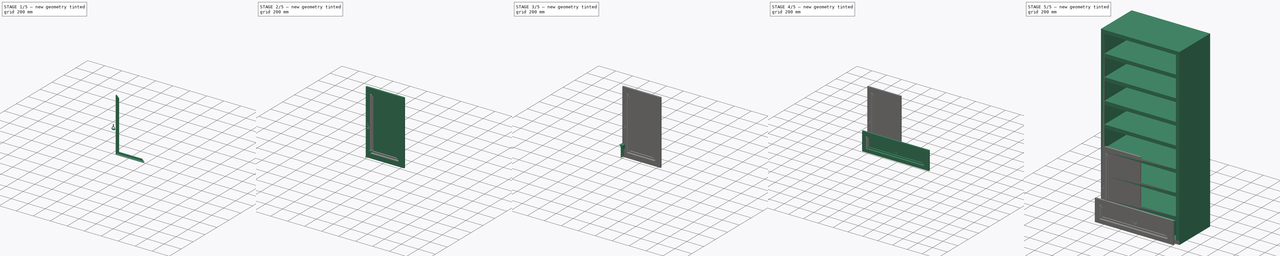
[diagram: build sequence overview — one tinted view per stage of 5, left to right]
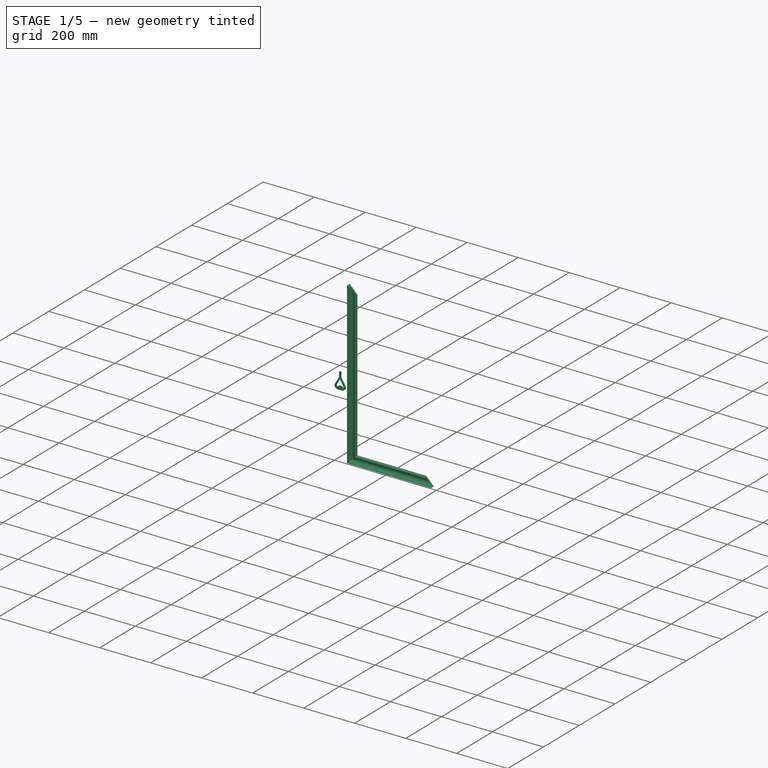
[diagram: stage 1 of 5 — iso view after this stage's code; geometry added in this stage tinted green]
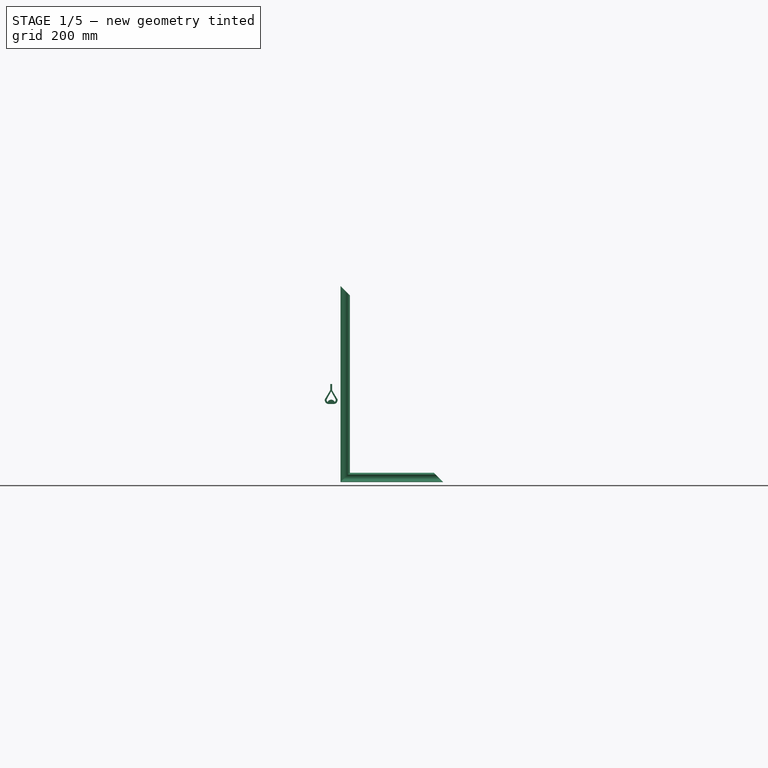
[diagram: stage 1 of 5 — front view after this stage's code; geometry added in this stage tinted green]
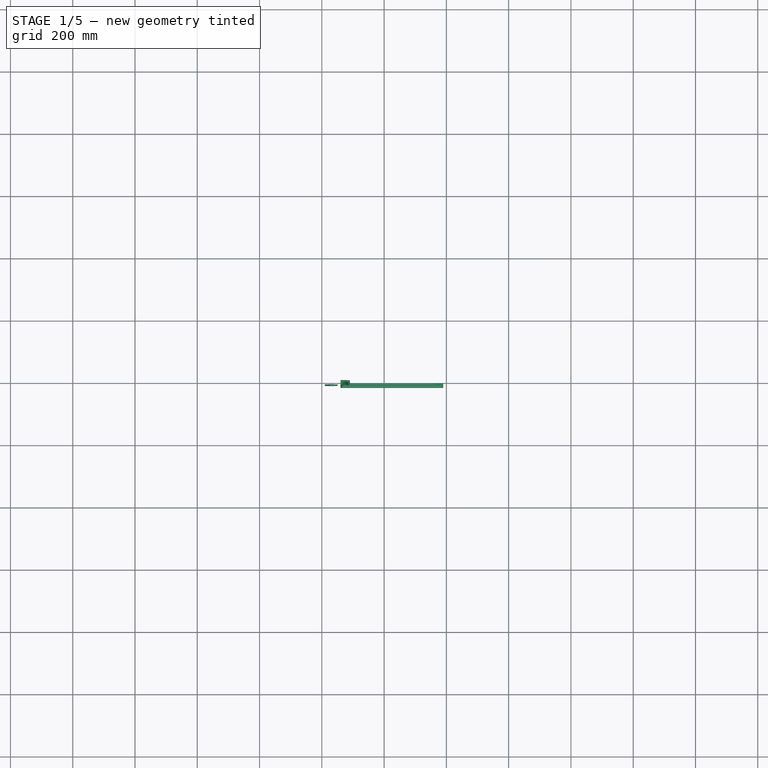
[diagram: stage 1 of 5 — top view after this stage's code; geometry added in this stage tinted green]
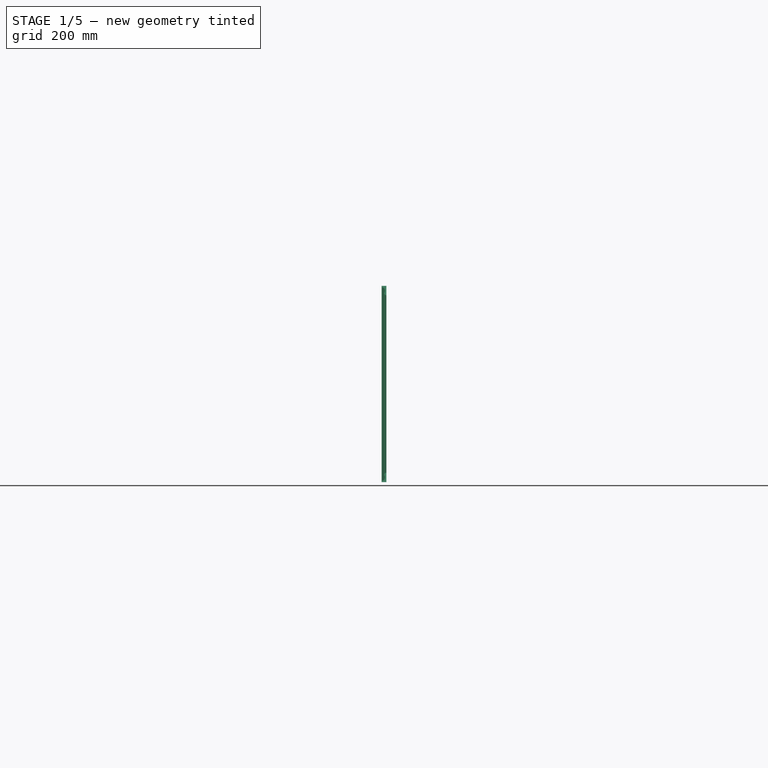
[diagram: stage 1 of 5 — right view after this stage's code; geometry added in this stage tinted green]
FCSTD DOCUMENT  (FreeCAD 1.1R20260325 (Git shallow))
Label: Merged_002
License: All rights reserved
LicenseURL: http://en.wikipedia.org/wiki/All_rights_reserved
objects: App::Point×30, Sketcher::SketchObject×21, PartDesign::Pad×21, PartDesign::Body×21, App::LinkGroup×17, Part::Box×13, Part::Cut×12, App::Link×10, App::Part×9, Spreadsheet::Sheet×4, Part::Cone×3, Part::Sphere×3, Part::FeaturePython×1, TechDraw::DrawSVGTemplate×1, TechDraw::DrawViewSpreadsheet×1, TechDraw::DrawPage×1
note: 158 computed .brp shape members not serialized (recipe doc carries the construction recipe); baked Part::Feature solids carry a one-line shape summary decoded from their .brp

FEATURE [App::LinkGroup] LinkGroup012  label="Handle, Pin, Left002"
  ElementList = -> [Cone002,Sphere002]
  LinkMode = 0
  Placement = pos=(420,-10,375) rot=(0,0,1;0rad)
  Texture_Repeat_X = 1
  Texture_Repeat_Y = 1
  Texture_Rotation = 0
  Texture_URL = https://upload.wikimedia.org/wikipedia/commons/1/10/Metal_002_black_light.jpg
  expr: .Placement.Base.x = Spreadsheet002.flfwidth - Spreadsheet002.fldoffset / 2
  expr: .Placement.Base.y = -Spreadsheet002.flfthick + 8 mm
  expr: .Placement.Base.z = Spreadsheet002.flfheight / 2
FEATURE [Sketcher::SketchObject] Sketch019  label="Pattern, Decoration, Bottom002"
  ArcFitTolerance = 0
  AttachmentOffset = pos=(0,60,60) rot=(0,0,1;0rad)
  AttachmentSupport = -> [YZ_Plane026]
  ExternalTypes = [0]
  FullyConstrained = true
  MakeInternals = false
  MapMode = 5
  Placement = pos=(60,0,60) rot=(0.57735,0.57735,0.57735;2.0944rad)
  _ExternalGeoVersion = 0
  expr: .AttachmentOffset.Base.y = Spreadsheet002.fldoffset
  expr: .AttachmentOffset.Base.z = Spreadsheet002.fldoffset
  sketch-geometry (5):
    g0: LineSegment StartX=4e-16 StartY=30 StartZ=0 EndX=4e-16 EndY=0 EndZ=0
    g1: LineSegment StartX=4e-16 StartY=7e-16 StartZ=0 EndX=-15 EndY=7e-16 EndZ=0
    g2: ArcOfCircle CenterX=0 CenterY=23 CenterZ=0 NormalX=0 NormalY=0 NormalZ=1 AngleXU=0 Radius=7 StartAngle=1.5708 EndAngle=3.14159
    g3: ArcOfCircle CenterX=-16.3537 CenterY=15.4828 CenterZ=0 NormalX=0 NormalY=0 NormalZ=1 AngleXU=0 Radius=12 StartAngle=5.372 EndAngle=6.96016
    g4: ArcOfCircle CenterX=-9 CenterY=0 CenterZ=0 NormalX=0 NormalY=0 NormalZ=1 AngleXU=0 Radius=6 StartAngle=1.5708 EndAngle=3.14159
  constraints (17):
    c: Vertical(g0)
    c: Coincident(g1,g0)
    c: Horizontal(g1)
    c: Coincident(g2,g0)
    c: Coincident(g3,g2)
    c: Coincident(g4,g3)
    c: Coincident(g4,g1)
    c: DistanceY(g0,g0) = 30
    c: DistanceX(g1,g1) = 15
    c: Coincident(g0,g-1)
    c: PointOnObject(g2,g0)
    c: PointOnObject(g4,g1)
    c: Radius(g2) = 7
    c: Radius(g3) = 12
    c: Radius(g4) = 6
    c: Vertical(g3,g4)
    c: Horizontal(g2,g2)
FEATURE [PartDesign::Pad] Pad019  label="Decoration, Bottom002"
  Direction = (1,0,0)
  Length = 330
  Length2 = 10
  Placement = pos=(0,0,0) rot=(0.57735,0.57735,0.57735;2.0944rad)
  Profile = -> Sketch019
  ReferenceAxis = -> Sketch019 [N_Axis]
  SideType = 0
  Suppressed = false
  Type = 0
  Type2 = 0
  expr: Length = Spreadsheet002.flfwidth - 2 * Spreadsheet002.fldoffset
FEATURE [PartDesign::Body] Body019  label="Body, Decoration, Bottom002"
  AllowCompound = true
  Group = -> [Sketch019,Pad019]
  Origin = -> Origin027
  Tip = -> Pad019
FEATURE [Sketcher::SketchObject] Sketch020  label="Pattern, Decoration, Bottom, Cut, Left002"
  ArcFitTolerance = 0
  AttachmentOffset = pos=(60,60,0) rot=(0,0,1;0rad)
  AttachmentSupport = -> [XZ_Plane027]
  ExternalTypes = [0]
  FullyConstrained = true
  MakeInternals = false
  MapMode = 5
  Placement = pos=(60,1.33e-14,60) rot=(1,0,0;1.5708rad)
  _ExternalGeoVersion = 0
  expr: .AttachmentOffset.Base.x = Spreadsheet002.fldoffset
  expr: .AttachmentOffset.Base.y = Spreadsheet002.fldoffset
  sketch-geometry (3):
    g0: LineSegment StartX=0 StartY=0 StartZ=0 EndX=40 EndY=40 EndZ=0
    g1: LineSegment StartX=40 StartY=40 StartZ=0 EndX=0 EndY=40 EndZ=0
    g2: LineSegment StartX=0 StartY=40 StartZ=0 EndX=0 EndY=0 EndZ=0
  constraints (8):
    c: Coincident(g0,g1)
    c: Horizontal(g1)
    c: Coincident(g1,g2)
    c: Coincident(g2,g0)
    c: Coincident(g0,g-1)
    c: Vertical(g2)
    c: Equal(g2,g1)
    c: DistanceY(g2,g2) = 40
FEATURE [PartDesign::Pad] Pad020  label="Decoration, Bottom, Cut, Left002"
  Direction = (0,-1,2e-16)
  Length = 40
  Length2 = 10
  Placement = pos=(0,0,0) rot=(1,0,0;1.5708rad)
  Profile = -> Sketch020
  ReferenceAxis = -> Sketch020 [N_Axis]
  SideType = 0
  Suppressed = false
  Type = 0
  Type2 = 0
FEATURE [PartDesign::Body] Body020  label="Body, Decoration, Bottom, Cut, Left002"
  AllowCompound = true
  Group = -> [Sketch020,Pad020]
  Origin = -> Origin028
  Tip = -> Pad020
FEATURE [Sketcher::SketchObject] Sketch021  label="Pattern, Decoration, Bottom, Cut, Right002"
  ArcFitTolerance = 0
  AttachmentOffset = pos=(390,60,0) rot=(0,0,1;0rad)
  AttachmentSupport = -> [XZ_Plane028]
  ExternalTypes = [0]
  FullyConstrained = true
  MakeInternals = false
  MapMode = 5
  Placement = pos=(390,1.33e-14,60) rot=(1,0,0;1.5708rad)
  _ExternalGeoVersion = 0
  expr: .AttachmentOffset.Base.x = Spreadsheet002.flfwidth - Spreadsheet002.fldoffset
  expr: .AttachmentOffset.Base.y = Spreadsheet002.fldoffset
  sketch-geometry (3):
    g0: LineSegment StartX=-40 StartY=40 StartZ=0 EndX=0 EndY=0 EndZ=0
    g1: LineSegment StartX=0 StartY=0 StartZ=0 EndX=0 EndY=40 EndZ=0
    g2: LineSegment StartX=0 StartY=40 StartZ=0 EndX=-40 EndY=40 EndZ=0
  constraints (8):
    c: Coincident(g0,g-1)
    c: Coincident(g0,g1)
    c: PointOnObject(g1,g-2)
    c: Coincident(g1,g2)
    c: Coincident(g2,g0)
    c: Horizontal(g2)
    c: Equal(g2,g1)
    c: DistanceY(g1,g1) = 40
FEATURE [PartDesign::Pad] Pad021  label="Decoration, Bottom, Cut, Right002"
  Direction = (0,-1,2e-16)
  Length = 40
  Length2 = 10
  Placement = pos=(0,0,0) rot=(1,0,0;1.5708rad)
  Profile = -> Sketch021
  ReferenceAxis = -> Sketch021 [N_Axis]
  SideType = 0
  Suppressed = false
  Type = 0
  Type2 = 0
FEATURE [PartDesign::Body] Body021  label="Body, Decoration, Bottom, Cut, Right002"
  AllowCompound = true
  Group = -> [Sketch021,Pad021]
  Origin = -> Origin029
  Tip = -> Pad021
FEATURE [Part::Cut] Cut008
  Base = -> Body019
  Tool = -> Body020
FEATURE [Part::Cut] Cut009  label="Cut, Decoration, Bottom002"
  Base = -> Cut008
  Texture = https://upload.wikimedia.org/wikipedia/commons/d/d1/Wood_001_red_light.jpg
  Tool = -> Body021
FEATURE [App::Part] Part006  label="Part, Decoration, Bottom002"
  Group = -> [Body019,Body020,Body021,Cut008,Cut009]
  Origin = -> Origin026
FEATURE [App::LinkGroup] LinkGroup013  label="LinkGroup, Decoration, Bottom002"
  ElementList = -> [Part006]
  LinkMode = 0
  Texture_Repeat_X = 1
  Texture_Repeat_Y = 1
  Texture_Rotation = 0
  Texture_URL = https://upload.wikimedia.org/wikipedia/commons/d/d1/Wood_001_red_light.jpg
FEATURE [App::Link] Link008  label="Link, Decoration, Top002"
  LinkPlacement = pos=(450,0,750) rot=(0,1,0;3.14159rad)
  LinkedObject = -> LinkGroup013
  Placement = pos=(450,0,750) rot=(0,1,0;3.14159rad)
  expr: .Placement.Base.x = Spreadsheet002.flfwidth
  expr: .Placement.Base.z = Spreadsheet002.flfheight
FEATURE [Sketcher::SketchObject] Sketch022  label="Pattern, Decoration, Left002"
  ArcFitTolerance = 0
  AttachmentOffset = pos=(60,0,60) rot=(0,0,1;0rad)
  AttachmentSupport = -> [XY_Plane030]
  ExternalTypes = [0]
  FullyConstrained = true
  MakeInternals = false
  MapMode = 5
  Placement = pos=(60,0,60) rot=(0,0,1;0rad)
  _ExternalGeoVersion = 0
  expr: .AttachmentOffset.Base.x = Spreadsheet002.fldoffset
  expr: .AttachmentOffset.Base.z = Spreadsheet002.fldoffset
  sketch-geometry (5):
    g0: LineSegment StartX=30 StartY=-1.7e-15 StartZ=0 EndX=0 EndY=-1.7e-15 EndZ=0
    g1: LineSegment StartX=0 StartY=-15 StartZ=0 EndX=0 EndY=-1.8e-15 EndZ=0
    g2: ArcOfCircle CenterX=0 CenterY=-9 CenterZ=0 NormalX=0 NormalY=0 NormalZ=1 AngleXU=0 Radius=6 StartAngle=4.71239 EndAngle=6.28319
    g3: ArcOfCircle CenterX=15.4828 CenterY=-16.3537 CenterZ=0 NormalX=0 NormalY=0 NormalZ=1 AngleXU=0 Radius=12 StartAngle=0.893826 EndAngle=2.48198
    g4: ArcOfCircle CenterX=23 CenterY=0 CenterZ=0 NormalX=0 NormalY=0 NormalZ=1 AngleXU=0 Radius=7 StartAngle=4.71239 EndAngle=6.28319
  constraints (17):
    c: Vertical(g1)
    c: Coincident(g0,g1)
    c: Horizontal(g0)
    c: Coincident(g0,g-1)
    c: DistanceY(g1,g1) = 15
    c: DistanceX(g0,g0) = 30
    c: Coincident(g2,g1)
    c: Coincident(g3,g2)
    c: Coincident(g4,g3)
    c: Coincident(g4,g0)
    c: PointOnObject(g4,g0)
    c: PointOnObject(g2,g1)
    c: Radius(g2) = 6
    c: Radius(g3) = 12
    c: Radius(g4) = 7
    c: Horizontal(g2,g2)
    c: Vertical(g3,g4)
FEATURE [PartDesign::Pad] Pad022  label="Decoration, Left002"
  Direction = (0,0,1)
  Length = 630
  Length2 = 10
  Profile = -> Sketch022
  ReferenceAxis = -> Sketch022 [N_Axis]
  SideType = 0
  Suppressed = false
  Type = 0
  Type2 = 0
  expr: Length = Spreadsheet002.flfheight - 2 * Spreadsheet002.fldoffset
FEATURE [PartDesign::Body] Body022  label="Body, Decoration, Left002"
  AllowCompound = true
  Group = -> [Sketch022,Pad022]
  Origin = -> Origin031
  Tip = -> Pad022
FEATURE [Sketcher::SketchObject] Sketch023  label="Pattern, Decoration, Left, Cut, Bottom002"
  ArcFitTolerance = 0
  AttachmentOffset = pos=(60,60,0) rot=(0,0,1;0rad)
  AttachmentSupport = -> [XZ_Plane031]
  ExternalTypes = [0]
  FullyConstrained = true
  MakeInternals = false
  MapMode = 5
  Placement = pos=(60,1.33e-14,60) rot=(1,0,0;1.5708rad)
  _ExternalGeoVersion = 0
  expr: .AttachmentOffset.Base.x = Spreadsheet002.fldoffset
  expr: .AttachmentOffset.Base.y = Spreadsheet002.fldoffset
  sketch-geometry (3):
    g0: LineSegment StartX=0 StartY=0 StartZ=0 EndX=40 EndY=40 EndZ=0
    g1: LineSegment StartX=40 StartY=40 StartZ=0 EndX=40 EndY=0 EndZ=0
    g2: LineSegment StartX=40 StartY=0 StartZ=0 EndX=0 EndY=0 EndZ=0
  constraints (8):
    c: Coincident(g-1,g0)
    c: Coincident(g0,g1)
    c: PointOnObject(g1,g-1)
    c: Vertical(g1)
    c: Coincident(g1,g2)
    c: Coincident(g2,g0)
    c: Equal(g1,g2)
    c: DistanceY(g1,g1) = 40
FEATURE [PartDesign::Pad] Pad023  label="Decoration, Left, Cut, Bottom002"
  Direction = (0,-1,2e-16)
  Length = 40
  Length2 = 10
  Placement = pos=(0,0,0) rot=(1,0,0;1.5708rad)
  Profile = -> Sketch023
  ReferenceAxis = -> Sketch023 [N_Axis]
  SideType = 0
  Suppressed = false
  Type = 0
  Type2 = 0
FEATURE [PartDesign::Body] Body023  label="Body, Decoration, Left, Cut, Bottom002"
  AllowCompound = true
  Group = -> [Sketch023,Pad023]
  Origin = -> Origin032
  Tip = -> Pad023
FEATURE [Sketcher::SketchObject] Sketch024  label="Pattern, Decoration, Left, Cut, Top002"
  ArcFitTolerance = 0
  AttachmentOffset = pos=(60,690,0) rot=(0,0,1;0rad)
  AttachmentSupport = -> [XZ_Plane032]
  ExternalTypes = [0]
  FullyConstrained = true
  MakeInternals = false
  MapMode = 5
  Placement = pos=(60,1.532e-13,690) rot=(1,0,0;1.5708rad)
  _ExternalGeoVersion = 0
  expr: .AttachmentOffset.Base.x = Spreadsheet002.fldoffset
  expr: .AttachmentOffset.Base.y = Spreadsheet002.flfheight - Spreadsheet002.fldoffset
  sketch-geometry (3):
    g0: LineSegment StartX=0 StartY=0 StartZ=0 EndX=40 EndY=-40 EndZ=0
    g1: LineSegment StartX=40 StartY=-40 StartZ=0 EndX=40 EndY=0 EndZ=0
    g2: LineSegment StartX=40 StartY=0 StartZ=0 EndX=0 EndY=0 EndZ=0
  constraints (8):
    c: Coincident(g-1,g0)
    c: Coincident(g0,g1)
    c: PointOnObject(g1,g-1)
    c: Vertical(g1)
    c: Coincident(g1,g2)
    c: Coincident(g2,g0)
    c: Equal(g1,g2)
    c: DistanceY(g1,g1) = 40
FEATURE [PartDesign::Pad] Pad024  label="Decoration, Left, Cut, Top002"
  Direction = (0,-1,2e-16)
  Length = 40
  Length2 = 10
  Placement = pos=(0,0,0) rot=(1,0,0;1.5708rad)
  Profile = -> Sketch024
  ReferenceAxis = -> Sketch024 [N_Axis]
  SideType = 0
  Suppressed = false
  Type = 0
  Type2 = 0
FEATURE [PartDesign::Body] Body024  label="Body, Decoration, Left, Cut, Top002"
  AllowCompound = true
  Group = -> [Sketch024,Pad024]
  Origin = -> Origin033
  Tip = -> Pad024
FEATURE [Part::Cut] Cut010
  Base = -> Body022
  Tool = -> Body023
FEATURE [Part::Cut] Cut011  label="Cut, Decoration, Left002"
  Base = -> Cut010
  Tool = -> Body024
FEATURE [App::Part] Part007  label="Part, Decoration, Left002"
  Group = -> [Body022,Body023,Body024,Cut010,Cut011]
  Origin = -> Origin030
FEATURE [App::LinkGroup] LinkGroup014  label="LinkGroup, Decoration, Left002"
  ElementList = -> [Part007]
  LinkMode = 0
  Texture_Repeat_X = 1
  Texture_Repeat_Y = 1
  Texture_Rotation = 0
  Texture_URL = https://upload.wikimedia.org/wikipedia/commons/d/d1/Wood_001_red_light.jpg
FEATURE [App::Link] Link009  label="Link, Decoration, Right002"
  LinkPlacement = pos=(450,0,750) rot=(0,1,0;3.14159rad)
  LinkedObject = -> LinkGroup014
  Placement = pos=(450,0,750) rot=(0,1,0;3.14159rad)
  expr: .Placement.Base.x = Spreadsheet002.flfwidth
  expr: .Placement.Base.z = Spreadsheet002.flfheight
FEATURE [Sketcher::SketchObject] Sketch025
  ArcFitTolerance = 0
  AttachmentOffset = pos=(30,375,8) rot=(0,0,1;0rad)
  AttachmentSupport = -> [XZ_Plane034]
  ExternalTypes = [0]
  FullyConstrained = true
  MakeInternals = false
  MapMode = 5
  Placement = pos=(30,-8,375) rot=(1,0,0;1.5708rad)
  _ExternalGeoVersion = 0
  expr: .AttachmentOffset.Base.x = Spreadsheet002.fldoffset / 2
  expr: .AttachmentOffset.Base.y = Spreadsheet002.flfheight / 2
  sketch-geometry (13):
    g0: LineSegment StartX=-2.89 StartY=0 StartZ=0 EndX=-2.89 EndY=-20 EndZ=0
    g1: LineSegment StartX=2.89 StartY=0 StartZ=0 EndX=2.89 EndY=-20 EndZ=0
    g2: LineSegment StartX=-2.89 StartY=0 StartZ=0 EndX=2.89 EndY=0 EndZ=0
    g3: LineSegment StartX=-2.89 StartY=-20 StartZ=0 EndX=-20.5255 EndY=-49.48 EndZ=0
    g4: LineSegment StartX=2.89 StartY=-20 StartZ=0 EndX=20.5255 EndY=-49.48 EndZ=0
    g5: LineSegment StartX=-13.7655 StartY=-48.2802 StartZ=0 EndX=0 EndY=-23.6879 EndZ=0
    g6: LineSegment StartX=0 StartY=-23.6879 StartZ=0 EndX=13.7655 EndY=-48.2802 EndZ=0
    g7: ArcOfCircle CenterX=-7.79 CenterY=-51.47 CenterZ=0 NormalX=0 NormalY=0 NormalZ=1 AngleXU=0 Radius=12.89 StartAngle=2.98659 EndAngle=4.71316
    g8: ArcOfCircle CenterX=-7.79 CenterY=-51.47 CenterZ=0 NormalX=0 NormalY=0 NormalZ=1 AngleXU=0 Radius=6.77356 StartAngle=2.65126 EndAngle=4.1959
    g9: ArcOfCircle CenterX=0 CenterY=-62.5379 CenterZ=0 NormalX=0 NormalY=0 NormalZ=1 AngleXU=0 Radius=12.28 StartAngle=0.435264 EndAngle=2.70633
    g10: ArcOfCircle CenterX=7.79 CenterY=-51.47 CenterZ=0 NormalX=0 NormalY=0 NormalZ=1 AngleXU=0 Radius=6.77356 StartAngle=5.22888 EndAngle=6.77352
    g11: ArcOfCircle CenterX=7.79 CenterY=-51.47 CenterZ=0 NormalX=0 NormalY=0 NormalZ=1 AngleXU=0 Radius=12.89 StartAngle=4.71316 EndAngle=6.43819
    g12: LineSegment StartX=-7.78 StartY=-64.36 StartZ=0 EndX=7.8 EndY=-64.36 EndZ=0
  constraints (42):
    c: PointOnObject(g0,g-1)
    c: Vertical(g0)
    c: PointOnObject(g1,g-1)
    c: Vertical(g1)
    c: Coincident(g2,g0)
    c: Coincident(g2,g1)
    c: Coincident(g3,g0)
    c: Coincident(g4,g1)
    c: PointOnObject(g5,g-2)
    c: Coincident(g6,g5)
    c: Coincident(g7,g3)
    c: Coincident(g8,g5)
    c: Coincident(g9,g8)
    c: Coincident(g10,g9)
    c: Coincident(g10,g6)
    c: Coincident(g11,g4)
    c: Coincident(g12,g7)
    c: Coincident(g12,g11)
    c: Horizontal(g12)
    c: DistanceY(g1,g1) = 20
    c: Equal(g0,g1)
    c: Equal(g3,g4)
    c: Equal(g5,g6)
    c: Equal(g8,g10)
    c: Equal(g7,g11)
    c: PointOnObject(g9,g-2)
    c: Horizontal(g9,g8)
    c: Horizontal(g3,g4)
    c: Horizontal(g5,g6)
    c: Coincident(g7,g8)
    c: Coincident(g10,g11)
    c: DistanceX(g0,g-1) = 2.89
    c: DistanceX(g3,g5) = 6.76
    c: DistanceY(g9,g5) = 38.85
    c: DistanceY(g7,g-1) = 64.36
    c: DistanceY(g7,g-1) = 51.47
    c: DistanceX(g8,g9) = 22.27
    c: DistanceX(g9,g10) = 7.79
    c: DistanceY(g9,g-1) = 57.36
    c: DistanceY(g4,g-1) = 49.48
    c: DistanceX(g9,g11) = 7.8
    c: Radius(g9) = 12.28
FEATURE [PartDesign::Pad] Pad025  label="Handle002"
  Direction = (0,-1,2e-16)
  Length = 5
  Length2 = 10
  Placement = pos=(0,0,0) rot=(1,0,0;1.5708rad)
  Profile = -> Sketch025
  ReferenceAxis = -> Sketch025 [N_Axis]
  SideType = 0
  Suppressed = false
  Type = 0
  Type2 = 0
FEATURE [PartDesign::Body] Body025  label="Body, Handle002"
  AllowCompound = true
  Group = -> [Sketch025,Pad025]
  Origin = -> Origin035
  Tip = -> Pad025
FEATURE [App::Part] Part008  label="Part, Handle002"
  Group = -> [Body025]
  Origin = -> Origin034
FEATURE [App::LinkGroup] LinkGroup015  label="LinkGroup, Handle001"
  ElementList = -> [Part008]
  LinkMode = 0
  Placement = pos=(390,0,0) rot=(0,0,1;0rad)
  Texture_Repeat_X = 1
  Texture_Repeat_Y = 1
  Texture_Rotation = 0
  Texture_URL = https://upload.wikimedia.org/wikipedia/commons/1/10/Metal_002_black_light.jpg
  expr: .Placement.Base.x = Spreadsheet002.flfwidth - Spreadsheet002.fldoffset
FEATURE [App::LinkGroup] LinkGroup016  label="LinkGroup, Front left"
  ElementList = -> [Spreadsheet002,Box012,LinkGroup012,LinkGroup013,Link008,LinkGroup014,Link009,LinkGroup015]
  LinkMode = 0
  Placement = pos=(0,-18,1200) rot=(0,0,1;0rad)
FEATURE [App::LinkGroup] LinkGroup006  label="LinkGroup, Segment"
  ElementList = -> [LinkGroup,LinkGroup005,Link003,LinkGroup011,LinkGroup016]
  LinkMode = 0
FEATURE [Spreadsheet::Sheet] toCut
  cells = A1='Name; B1='Dimensions; E1='Thickness; F1='Quantity; G1='m2; A2='Side left; B2==500 mm; C2='x; D2==1920 mm; E2==40 mm; F2='2; G2='1.92; A3='Side right; B3==500 mm; C3='x; D3==1920 mm; E3==40 mm; F3='2; G3='1.92; A4='Top; B4==500 mm; C4='x; D4==900 mm; E4==40 mm; F4='2; G4='0.9; A5='Bottom; B5==500 mm; C5='x; D5==900 mm; E5==40 mm; F5='2; G5='0.9; A6='Back; B6==900 mm; C6='x; D6==2000 mm; E6==3 mm; F6='2; G6='3.6; A7='Shelf; B7==500 mm; C7='x; D7==820 mm; E7==40 mm; F7='14; G7='5.74; A8='Bottom001; B8==446 mm; C8='x; D8==784 mm; E8==3 mm; F8='4; G8='1.398656; A9='Left; B9==150 mm; C9='x; D9==450 mm; E9==12 mm; F9='4; G9='0.27; A10='Right; B10==150 mm; C10='x; D10==450 mm; E10==12 mm; F10='4; G10='0.27; A11='Back001; B11==150 mm; C11='x; D11==776 mm; E11==12 mm; F11='4; G11='0.4656; A12='Front; B12==250 mm; C12='x; D12==900 mm; E12==18 mm; F12='4; G12='0.9; A13='Handle; B13==5 mm; C13='x; D13==14 mm; E13==3 mm; F13='4; G13='0.000279; A14='Decoration, Bottom; B14==30 mm; C14='x; D14==776 mm; E14==15 mm; F14='8; G14='0.18624; A15='Decoration, Bottom, Cut, Left; B15==40 mm; C15='x; D15==57 mm; E15==40 mm; F15='8; G15='0.018102; A16='Decoration, Bottom, Cut, Right; B16==40 mm; C16='x; D16==57 mm; E16==40 mm; F16='8; G16='0.018102; A17='Decoration, Left; B17==30 mm; C17='x; D17==150 mm; E17==15 mm; F17='8; G17='0.036; A18='Decoration, Left, Cut, Bottom; B18==40 mm; C18='x; D18==57 mm; E18==40 mm; F18='8; G18='0.018102; A19='Decoration, Left, Cut, Top; B19==40 mm; C19='x; D19==57 mm; E19==40 mm; F19='8; G19='0.018102; A20='Front001; B20==450 mm; C20='x; D20==750 mm; E20==18 mm; F20='2; G20='0.675; A21='Decoration, Bottom001; B21==30 mm; C21='x; D21==330 mm; E21==15 mm; F21='4; G21='0.0396; A22='Decoration, Bottom, Cut, Left001; B22==40 mm; C22='x; D22==57 mm; E22==40 mm; F22='4; G22='0.009051; A23='Decoration, Bottom, Cut, Right001; B23==40 mm; C23='x; D23==57 mm; E23==40 mm; F23='4; G23='0.009051; A24='Decoration, Left001; B24==30 mm; C24='x; D24==630 mm; E24==15 mm; F24='4; G24='0.0756; A25='Decoration, Left, Cut, Bottom001; B25==40 mm; C25='x; D25==57 mm; E25==40 mm; F25='4; G25='0.009051; A26='Decoration, Left, Cut, Top001; B26==40 mm; C26='x; D26==57 mm; E26==40 mm; F26='4; G26='0.009051; A27='Front002; B27==450 mm; C27='x; D27==750 mm; E27==18 mm; F27='2; G27='0.675; A28='Decoration, Bottom002; B28==30 mm; C28='x; D28==330 mm; E28==15 mm; F28='4; G28='0.0396; A29='Decoration, Bottom, Cut, Left002; B29==40 mm; C29='x; D29==57 mm; E29==40 mm; F29='4; +61 more cells
FEATURE [TechDraw::DrawSVGTemplate] Template
  Height = 297
  Orientation = 0
  Width = 210
FEATURE [TechDraw::DrawViewSpreadsheet] Sheet
  CellEnd = G50
  CellStart = A1
  Font = DejaVu Sans
  LineWidth = 0.1
  LockPosition = false
  Rotation = 0
  ScaleType = 2
  Source = -> toCut
  Symbol = <blob: 69008 chars omitted>
  TextSize = 13
  X = 105
  Y = 148
FEATURE [TechDraw::DrawPage] toPrint
  KeepUpdated = true
  NextBalloonIndex = 1
  ProjectionType = 0
  Template = -> Template
  Views = -> [Sheet]
FEATURE [App::Point] Origin036  label="Origin"
  Role = Origin
FEATURE [App::Point] Origin037  label="Origin"
  Role = Origin
FEATURE [App::Point] Origin038  label="Origin"
  Role = Origin
FEATURE [App::Point] Origin039  label="Origin"
  Role = Origin
FEATURE [App::Point] Origin040  label="Origin"
  Role = Origin
FEATURE [App::Point] Origin041  label="Origin"
  Role = Origin
FEATURE [App::Point] Origin042  label="Origin"
  Role = Origin
FEATURE [App::Point] Origin043  label="Origin"
  Role = Origin
FEATURE [App::Point] Origin044  label="Origin"
  Role = Origin
FEATURE [App::Point] Origin045  label="Origin"
  Role = Origin
FEATURE [App::Point] Origin046  label="Origin"
  Role = Origin
FEATURE [App::Point] Origin047  label="Origin"
  Role = Origin
FEATURE [App::Point] Origin048  label="Origin"
  Role = Origin
FEATURE [App::Point] Origin049  label="Origin"
  Role = Origin
FEATURE [App::Point] Origin050  label="Origin"
  Role = Origin
FEATURE [App::Point] Origin051  label="Origin"
  Role = Origin
FEATURE [App::Point] Origin052  label="Origin"
  Role = Origin
FEATURE [App::Point] Origin053  label="Origin"
  Role = Origin
FEATURE [App::Point] Origin054  label="Origin"
  Role = Origin
FEATURE [App::Point] Origin055  label="Origin"
  Role = Origin
FEATURE [App::Point] Origin056  label="Origin"
  Role = Origin
FEATURE [App::Point] Origin057  label="Origin"
  Role = Origin
FEATURE [App::Point] Origin058  label="Origin"
  Role = Origin
FEATURE [App::Point] Origin059  label="Origin"
  Role = Origin
FEATURE [App::Point] Origin060  label="Origin"
  Role = Origin
FEATURE [App::Point] Origin061  label="Origin"
  Role = Origin
FEATURE [App::Point] Origin062  label="Origin"
  Role = Origin
FEATURE [App::Point] Origin063  label="Origin"
  Role = Origin
FEATURE [App::Point] Origin064  label="Origin"
  Role = Origin
FEATURE [App::Point] Origin065  label="Origin"
  Role = Origin
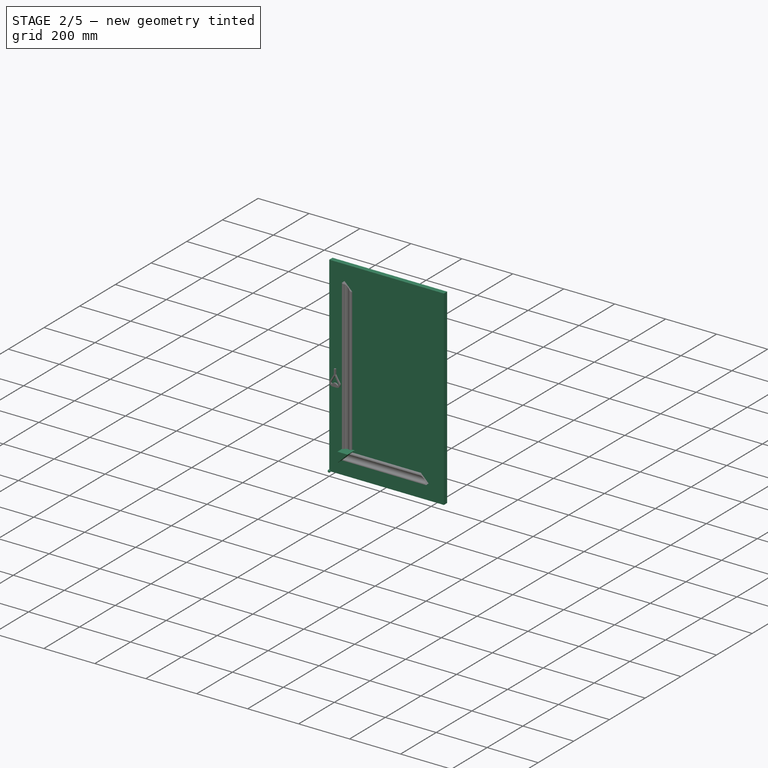
[diagram: stage 2 of 5 — iso view after this stage's code; geometry added in this stage tinted green]
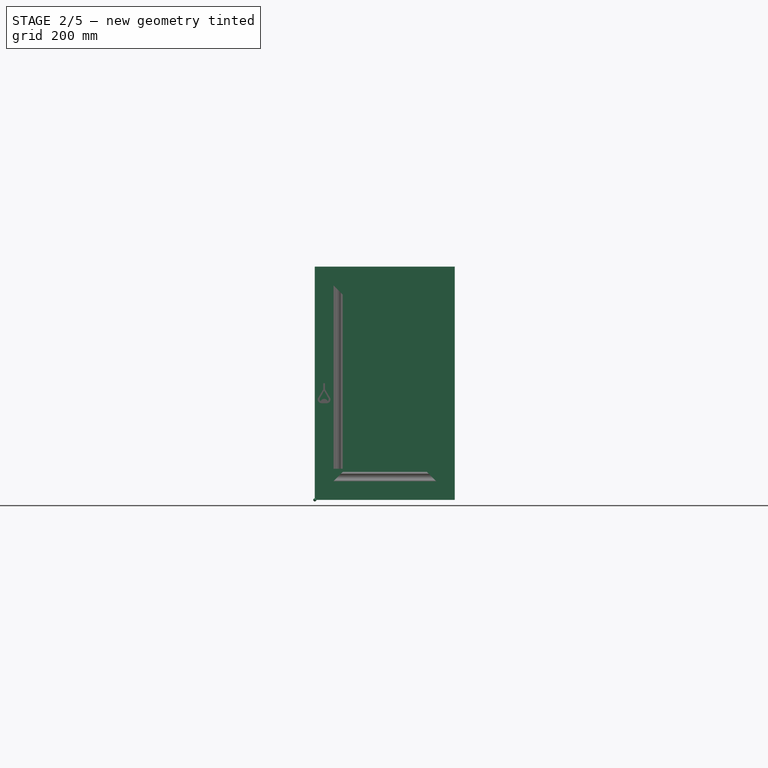
[diagram: stage 2 of 5 — front view after this stage's code; geometry added in this stage tinted green]
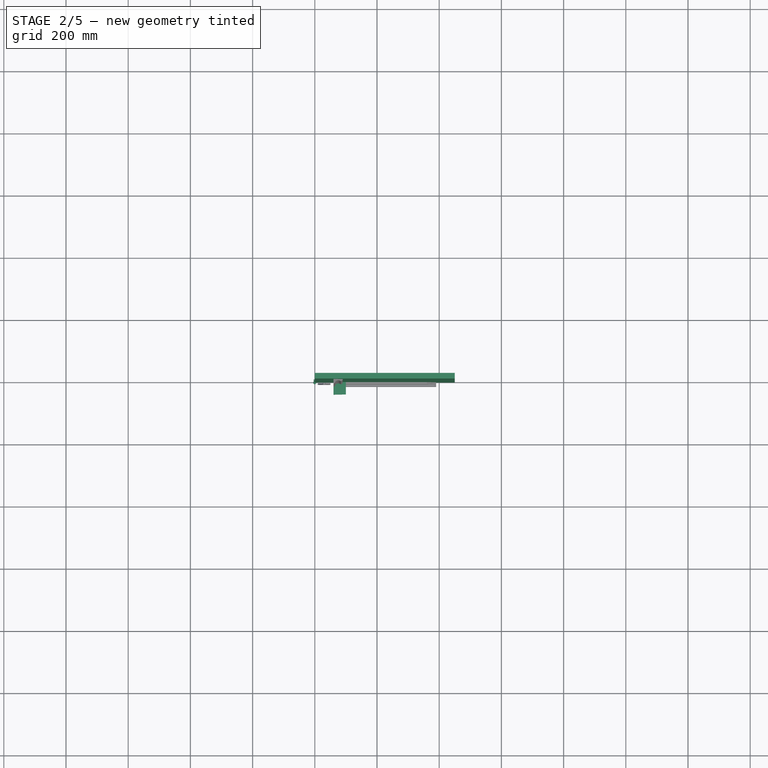
[diagram: stage 2 of 5 — top view after this stage's code; geometry added in this stage tinted green]
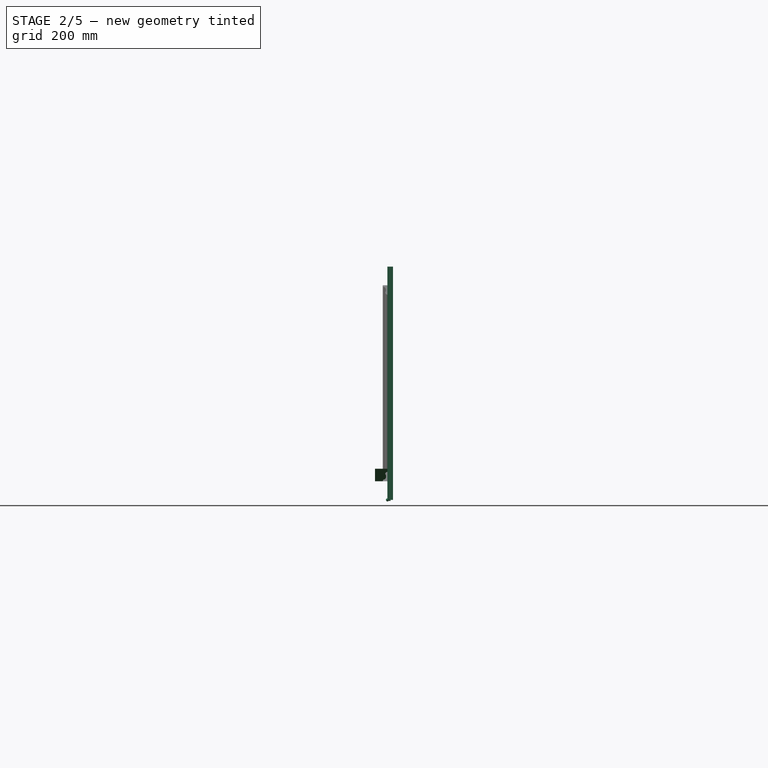
[diagram: stage 2 of 5 — right view after this stage's code; geometry added in this stage tinted green]
FEATURE [PartDesign::Body] Body012  label="Body, Decoration, Bottom001"
  AllowCompound = true
  Group = -> [Sketch012,Pad012]
  Origin = -> Origin017
  Tip = -> Pad012
FEATURE [Sketcher::SketchObject] Sketch013  label="Pattern, Decoration, Bottom, Cut, Left001"
  ArcFitTolerance = 0
  AttachmentOffset = pos=(60,60,0) rot=(0,0,1;0rad)
  AttachmentSupport = -> [XZ_Plane017]
  ExternalTypes = [0]
  FullyConstrained = true
  MakeInternals = false
  MapMode = 5
  Placement = pos=(60,1.33e-14,60) rot=(1,0,0;1.5708rad)
  _ExternalGeoVersion = 0
  expr: .AttachmentOffset.Base.x = Spreadsheet001.frdoffset
  expr: .AttachmentOffset.Base.y = Spreadsheet001.frdoffset
  sketch-geometry (3):
    g0: LineSegment StartX=0 StartY=0 StartZ=0 EndX=40 EndY=40 EndZ=0
    g1: LineSegment StartX=40 StartY=40 StartZ=0 EndX=0 EndY=40 EndZ=0
    g2: LineSegment StartX=0 StartY=40 StartZ=0 EndX=0 EndY=0 EndZ=0
  constraints (8):
    c: Coincident(g0,g1)
    c: Horizontal(g1)
    c: Coincident(g1,g2)
    c: Coincident(g2,g0)
    c: Coincident(g0,g-1)
    c: Vertical(g2)
    c: Equal(g2,g1)
    c: DistanceY(g2,g2) = 40
FEATURE [PartDesign::Pad] Pad013  label="Decoration, Bottom, Cut, Left001"
  Direction = (0,-1,2e-16)
  Length = 40
  Length2 = 10
  Placement = pos=(0,0,0) rot=(1,0,0;1.5708rad)
  Profile = -> Sketch013
  ReferenceAxis = -> Sketch013 [N_Axis]
  SideType = 0
  Suppressed = false
  Type = 0
  Type2 = 0
FEATURE [App::Part] Part003  label="Part, Decoration, Bottom001"
  Group = -> [Body012,Body013,Body014,Cut004,Cut005]
  Origin = -> Origin016
FEATURE [App::LinkGroup] LinkGroup008  label="LinkGroup, Decoration, Bottom001"
  ElementList = -> [Part003]
  LinkMode = 0
  Texture_Repeat_X = 1
  Texture_Repeat_Y = 1
  Texture_Rotation = 0
  Texture_URL = https://upload.wikimedia.org/wikipedia/commons/d/d1/Wood_001_red_light.jpg
FEATURE [App::Link] Link006  label="Link, Decoration, Top001"
  LinkPlacement = pos=(450,0,750) rot=(0,1,0;3.14159rad)
  LinkedObject = -> LinkGroup008
  Placement = pos=(450,0,750) rot=(0,1,0;3.14159rad)
  expr: .Placement.Base.x = Spreadsheet001.frfwidth
  expr: .Placement.Base.z = Spreadsheet001.frfheight
FEATURE [Sketcher::SketchObject] Sketch015  label="Pattern, Decoration, Left001"
  ArcFitTolerance = 0
  AttachmentOffset = pos=(60,0,60) rot=(0,0,1;0rad)
  AttachmentSupport = -> [XY_Plane020]
  ExternalTypes = [0]
  FullyConstrained = true
  MakeInternals = false
  MapMode = 5
  Placement = pos=(60,0,60) rot=(0,0,1;0rad)
  _ExternalGeoVersion = 0
  expr: .AttachmentOffset.Base.x = Spreadsheet001.frdoffset
  expr: .AttachmentOffset.Base.z = Spreadsheet001.frdoffset
  sketch-geometry (5):
    g0: LineSegment StartX=30 StartY=-1.8e-15 StartZ=0 EndX=0 EndY=-1.8e-15 EndZ=0
    g1: LineSegment StartX=0 StartY=-15 StartZ=0 EndX=0 EndY=-1.8e-15 EndZ=0
    g2: ArcOfCircle CenterX=0 CenterY=-9 CenterZ=0 NormalX=0 NormalY=0 NormalZ=1 AngleXU=0 Radius=6 StartAngle=4.71239 EndAngle=6.28319
    g3: ArcOfCircle CenterX=15.4828 CenterY=-16.3537 CenterZ=0 NormalX=0 NormalY=0 NormalZ=1 AngleXU=0 Radius=12 StartAngle=0.893826 EndAngle=2.48198
    g4: ArcOfCircle CenterX=23 CenterY=0 CenterZ=0 NormalX=0 NormalY=0 NormalZ=1 AngleXU=0 Radius=7 StartAngle=4.71239 EndAngle=6.28319
  constraints (17):
    c: Vertical(g1)
    c: Coincident(g0,g1)
    c: Horizontal(g0)
    c: Coincident(g0,g-1)
    c: DistanceY(g1,g1) = 15
    c: DistanceX(g0,g0) = 30
    c: Coincident(g2,g1)
    c: Coincident(g3,g2)
    c: Coincident(g4,g3)
    c: Coincident(g4,g0)
    c: PointOnObject(g4,g0)
    c: PointOnObject(g2,g1)
    c: Radius(g2) = 6
    c: Radius(g3) = 12
    c: Radius(g4) = 7
    c: Horizontal(g2,g2)
    c: Vertical(g3,g4)
FEATURE [PartDesign::Pad] Pad015  label="Decoration, Left001"
  Direction = (0,0,1)
  Length = 630
  Length2 = 10
  Profile = -> Sketch015
  ReferenceAxis = -> Sketch015 [N_Axis]
  SideType = 0
  Suppressed = false
  Type = 0
  Type2 = 0
  expr: Length = Spreadsheet001.frfheight - 2 * Spreadsheet001.frdoffset
FEATURE [PartDesign::Body] Body015  label="Body, Decoration, Left001"
  AllowCompound = true
  Group = -> [Sketch015,Pad015]
  Origin = -> Origin021
  Tip = -> Pad015
FEATURE [Sketcher::SketchObject] Sketch016  label="Pattern, Decoration, Left, Cut, Bottom001"
  ArcFitTolerance = 0
  AttachmentOffset = pos=(60,60,0) rot=(0,0,1;0rad)
  AttachmentSupport = -> [XZ_Plane021]
  ExternalTypes = [0]
  FullyConstrained = true
  MakeInternals = false
  MapMode = 5
  Placement = pos=(60,1.33e-14,60) rot=(1,0,0;1.5708rad)
  _ExternalGeoVersion = 0
  expr: .AttachmentOffset.Base.x = Spreadsheet001.frdoffset
  expr: .AttachmentOffset.Base.y = Spreadsheet001.frdoffset
  sketch-geometry (3):
    g0: LineSegment StartX=0 StartY=0 StartZ=0 EndX=40 EndY=40 EndZ=0
    g1: LineSegment StartX=40 StartY=40 StartZ=0 EndX=40 EndY=0 EndZ=0
    g2: LineSegment StartX=40 StartY=0 StartZ=0 EndX=0 EndY=0 EndZ=0
  constraints (8):
    c: Coincident(g-1,g0)
    c: Coincident(g0,g1)
    c: PointOnObject(g1,g-1)
    c: Vertical(g1)
    c: Coincident(g1,g2)
    c: Coincident(g2,g0)
    c: Equal(g1,g2)
    c: DistanceY(g1,g1) = 40
FEATURE [PartDesign::Pad] Pad016  label="Decoration, Left, Cut, Bottom001"
  Direction = (0,-1,2e-16)
  Length = 40
  Length2 = 10
  Placement = pos=(0,0,0) rot=(1,0,0;1.5708rad)
  Profile = -> Sketch016
  ReferenceAxis = -> Sketch016 [N_Axis]
  SideType = 0
  Suppressed = false
  Type = 0
  Type2 = 0
FEATURE [PartDesign::Body] Body016  label="Body, Decoration, Left, Cut, Bottom001"
  AllowCompound = true
  Group = -> [Sketch016,Pad016]
  Origin = -> Origin022
  Tip = -> Pad016
FEATURE [Sketcher::SketchObject] Sketch017  label="Pattern, Decoration, Left, Cut, Top001"
  ArcFitTolerance = 0
  AttachmentOffset = pos=(60,690,0) rot=(0,0,1;0rad)
  AttachmentSupport = -> [XZ_Plane022]
  ExternalTypes = [0]
  FullyConstrained = true
  MakeInternals = false
  MapMode = 5
  Placement = pos=(60,1.532e-13,690) rot=(1,0,0;1.5708rad)
  _ExternalGeoVersion = 0
  expr: .AttachmentOffset.Base.x = Spreadsheet001.frdoffset
  expr: .AttachmentOffset.Base.y = Spreadsheet001.frfheight - Spreadsheet001.frdoffset
  sketch-geometry (3):
    g0: LineSegment StartX=0 StartY=0 StartZ=0 EndX=40 EndY=-40 EndZ=0
    g1: LineSegment StartX=40 StartY=-40 StartZ=0 EndX=40 EndY=0 EndZ=0
    g2: LineSegment StartX=40 StartY=0 StartZ=0 EndX=0 EndY=0 EndZ=0
  constraints (8):
    c: Coincident(g-1,g0)
    c: Coincident(g0,g1)
    c: PointOnObject(g1,g-1)
    c: Vertical(g1)
    c: Coincident(g1,g2)
    c: Coincident(g2,g0)
    c: Equal(g1,g2)
    c: DistanceY(g1,g1) = 40
FEATURE [PartDesign::Pad] Pad017  label="Decoration, Left, Cut, Top001"
  Direction = (0,-1,2e-16)
  Length = 40
  Length2 = 10
  Placement = pos=(0,0,0) rot=(1,0,0;1.5708rad)
  Profile = -> Sketch017
  ReferenceAxis = -> Sketch017 [N_Axis]
  SideType = 0
  Suppressed = false
  Type = 0
  Type2 = 0
FEATURE [PartDesign::Body] Body017  label="Body, Decoration, Left, Cut, Top001"
  AllowCompound = true
  Group = -> [Sketch017,Pad017]
  Origin = -> Origin023
  Tip = -> Pad017
FEATURE [Part::Cut] Cut006
  Base = -> Body015
  Tool = -> Body016
FEATURE [Part::Cut] Cut007  label="Cut, Decoration, Left001"
  Base = -> Cut006
  Tool = -> Body017
FEATURE [App::Part] Part004  label="Part, Decoration, Left001"
  Group = -> [Body015,Body016,Body017,Cut006,Cut007]
  Origin = -> Origin020
FEATURE [App::LinkGroup] LinkGroup009  label="LinkGroup, Decoration, Left001"
  ElementList = -> [Part004]
  LinkMode = 0
  Texture_Repeat_X = 1
  Texture_Repeat_Y = 1
  Texture_Rotation = 0
  Texture_URL = https://upload.wikimedia.org/wikipedia/commons/d/d1/Wood_001_red_light.jpg
FEATURE [App::Link] Link007  label="Link, Decoration, Right001"
  LinkPlacement = pos=(450,0,750) rot=(0,1,0;3.14159rad)
  LinkedObject = -> LinkGroup009
  Placement = pos=(450,0,750) rot=(0,1,0;3.14159rad)
  expr: .Placement.Base.x = Spreadsheet001.frfwidth
  expr: .Placement.Base.z = Spreadsheet001.frfheight
FEATURE [Sketcher::SketchObject] Sketch018  label="Sketch012"
  ArcFitTolerance = 0
  AttachmentOffset = pos=(30,375,8) rot=(0,0,1;0rad)
  AttachmentSupport = -> [XZ_Plane024]
  ExternalTypes = [0]
  FullyConstrained = true
  MakeInternals = false
  MapMode = 5
  Placement = pos=(30,-8,375) rot=(1,0,0;1.5708rad)
  _ExternalGeoVersion = 0
  expr: .AttachmentOffset.Base.x = Spreadsheet001.frdoffset / 2
  expr: .AttachmentOffset.Base.y = Spreadsheet001.frfheight / 2
  sketch-geometry (13):
    g0: LineSegment StartX=-2.89 StartY=0 StartZ=0 EndX=-2.89 EndY=-20 EndZ=0
    g1: LineSegment StartX=2.89 StartY=0 StartZ=0 EndX=2.89 EndY=-20 EndZ=0
    g2: LineSegment StartX=-2.89 StartY=0 StartZ=0 EndX=2.89 EndY=0 EndZ=0
    g3: LineSegment StartX=-2.89 StartY=-20 StartZ=0 EndX=-20.5255 EndY=-49.48 EndZ=0
    g4: LineSegment StartX=2.89 StartY=-20 StartZ=0 EndX=20.5255 EndY=-49.48 EndZ=0
    g5: LineSegment StartX=-13.7655 StartY=-48.2802 StartZ=0 EndX=0 EndY=-23.6879 EndZ=0
    g6: LineSegment StartX=0 StartY=-23.6879 StartZ=0 EndX=13.7655 EndY=-48.2802 EndZ=0
    g7: ArcOfCircle CenterX=-7.79 CenterY=-51.47 CenterZ=0 NormalX=0 NormalY=0 NormalZ=1 AngleXU=0 Radius=12.89 StartAngle=2.98659 EndAngle=4.71316
    g8: ArcOfCircle CenterX=-7.79 CenterY=-51.47 CenterZ=0 NormalX=0 NormalY=0 NormalZ=1 AngleXU=0 Radius=6.77356 StartAngle=2.65126 EndAngle=4.1959
    g9: ArcOfCircle CenterX=0 CenterY=-62.5379 CenterZ=0 NormalX=0 NormalY=0 NormalZ=1 AngleXU=0 Radius=12.28 StartAngle=0.435264 EndAngle=2.70633
    g10: ArcOfCircle CenterX=7.79 CenterY=-51.47 CenterZ=0 NormalX=0 NormalY=0 NormalZ=1 AngleXU=0 Radius=6.77356 StartAngle=5.22888 EndAngle=6.77352
    g11: ArcOfCircle CenterX=7.79 CenterY=-51.47 CenterZ=0 NormalX=0 NormalY=0 NormalZ=1 AngleXU=0 Radius=12.89 StartAngle=4.71316 EndAngle=6.43819
    g12: LineSegment StartX=-7.78 StartY=-64.36 StartZ=0 EndX=7.8 EndY=-64.36 EndZ=0
  constraints (42):
    c: PointOnObject(g0,g-1)
    c: Vertical(g0)
    c: PointOnObject(g1,g-1)
    c: Vertical(g1)
    c: Coincident(g2,g0)
    c: Coincident(g2,g1)
    c: Coincident(g3,g0)
    c: Coincident(g4,g1)
    c: PointOnObject(g5,g-2)
    c: Coincident(g6,g5)
    c: Coincident(g7,g3)
    c: Coincident(g8,g5)
    c: Coincident(g9,g8)
    c: Coincident(g10,g9)
    c: Coincident(g10,g6)
    c: Coincident(g11,g4)
    c: Coincident(g12,g7)
    c: Coincident(g12,g11)
    c: Horizontal(g12)
    c: DistanceY(g1,g1) = 20
    c: Equal(g0,g1)
    c: Equal(g3,g4)
    c: Equal(g5,g6)
    c: Equal(g8,g10)
    c: Equal(g7,g11)
    c: PointOnObject(g9,g-2)
    c: Horizontal(g9,g8)
    c: Horizontal(g3,g4)
    c: Horizontal(g5,g6)
    c: Coincident(g7,g8)
    c: Coincident(g10,g11)
    c: DistanceX(g0,g-1) = 2.89
    c: DistanceX(g3,g5) = 6.76
    c: DistanceY(g9,g5) = 38.85
    c: DistanceY(g7,g-1) = 64.36
    c: DistanceY(g7,g-1) = 51.47
    c: DistanceX(g8,g9) = 22.27
    c: DistanceX(g9,g10) = 7.79
    c: DistanceY(g9,g-1) = 57.36
    c: DistanceY(g4,g-1) = 49.48
    c: DistanceX(g9,g11) = 7.8
    c: Radius(g9) = 12.28
FEATURE [PartDesign::Pad] Pad018  label="Handle001"
  Direction = (0,-1,2e-16)
  Length = 5
  Length2 = 10
  Placement = pos=(0,0,0) rot=(1,0,0;1.5708rad)
  Profile = -> Sketch018
  ReferenceAxis = -> Sketch018 [N_Axis]
  SideType = 0
  Suppressed = false
  Type = 0
  Type2 = 0
FEATURE [PartDesign::Body] Body018  label="Body, Handle001"
  AllowCompound = true
  Group = -> [Sketch018,Pad018]
  Origin = -> Origin025
  Tip = -> Pad018
FEATURE [App::Part] Part005  label="Part, Handle001"
  Group = -> [Body018]
  Origin = -> Origin024
FEATURE [App::LinkGroup] LinkGroup010  label="LinkGroup, Handle"
  ElementList = -> [Part005]
  LinkMode = 0
  Texture_Repeat_X = 1
  Texture_Repeat_Y = 1
  Texture_Rotation = 0
  Texture_URL = https://upload.wikimedia.org/wikipedia/commons/1/10/Metal_002_black_light.jpg
FEATURE [App::LinkGroup] LinkGroup011  label="LinkGroup, Front right"
  ElementList = -> [Spreadsheet001,Box011,LinkGroup007,LinkGroup008,Link006,LinkGroup009,Link007,LinkGroup010]
  LinkMode = 0
  Placement = pos=(450,-18,1200) rot=(0,0,1;0rad)
FEATURE [Spreadsheet::Sheet] Spreadsheet002  label="settings002"
  cells = A1='Settings (set here):; A2='Front width; B2(flfwidth)==450 mm; A3='Front height; B3(flfheight)==750 mm; A4='Front thickness; B4(flfthick)==18 mm; A5='Decoration offset; B5(fldoffset)==60 mm
FEATURE [Part::Box] Box012  label="Front002"
  AttacherType = Attacher::AttachEngine3D
  Height = 750
  Length = 450
  Texture_Repeat_X = 1
  Texture_Repeat_Y = 1
  Texture_Rotation = 0
  Texture_URL = https://upload.wikimedia.org/wikipedia/commons/d/d1/Wood_001_red_light.jpg
  Width = 18
  expr: Height = Spreadsheet002.flfheight
  expr: Length = Spreadsheet002.flfwidth
  expr: Width = Spreadsheet002.flfthick
FEATURE [Part::Cone] Cone002  label="Handle, Pin, left 005"
  Angle = 360
  AttacherType = Attacher::AttachEngine3D
  Height = 10
  Placement = pos=(0,0,0) rot=(-1,0,0;1.5708rad)
  Radius1 = 2
  Radius2 = 4
FEATURE [Part::Sphere] Sphere002  label="Handle, Pin, left 006"
  Angle1 = -90
  Angle2 = 90
  Angle3 = 360
  AttacherType = Attacher::AttachEngine3D
  Radius = 5
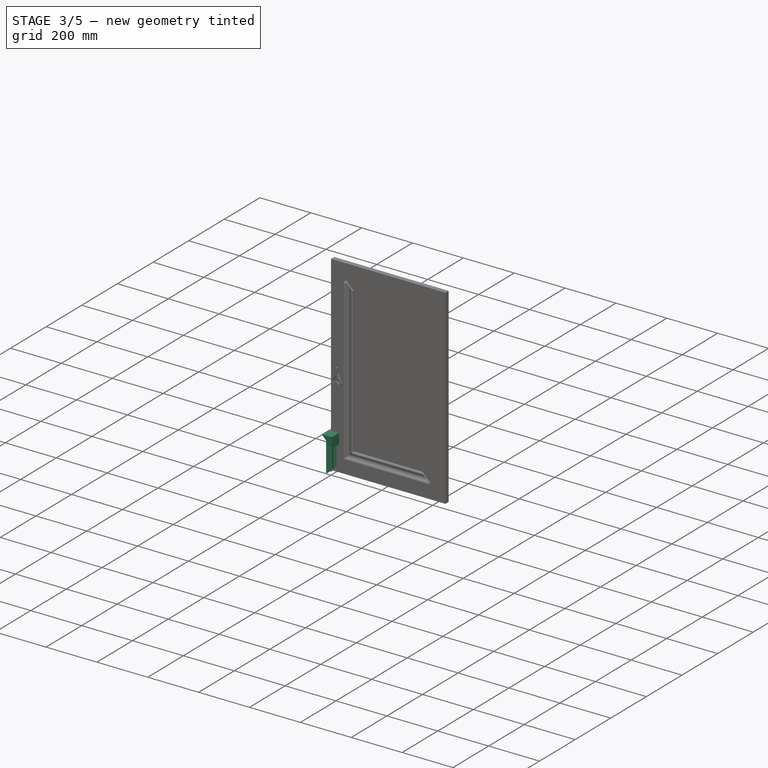
[diagram: stage 3 of 5 — iso view after this stage's code; geometry added in this stage tinted green]
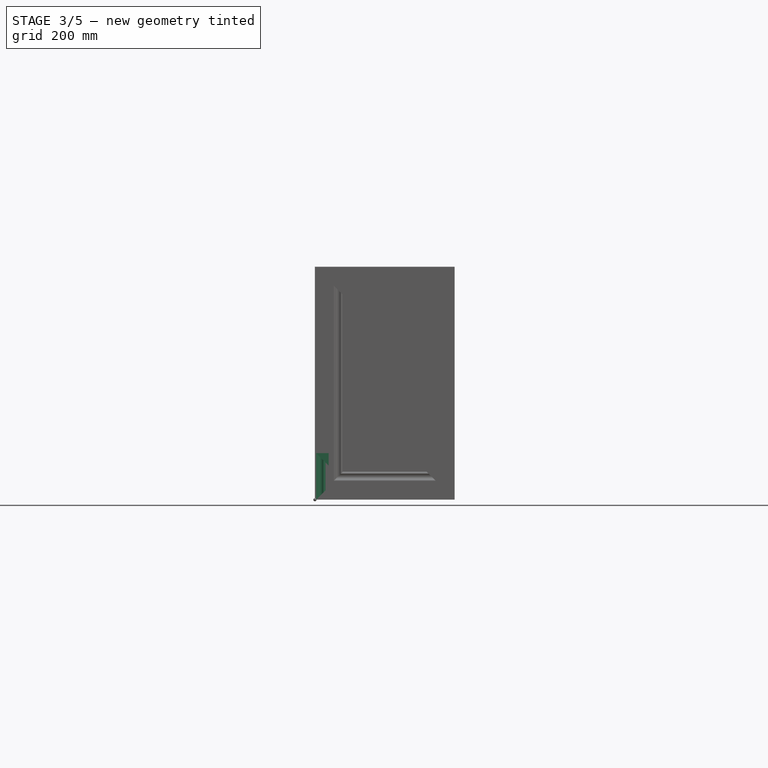
[diagram: stage 3 of 5 — front view after this stage's code; geometry added in this stage tinted green]
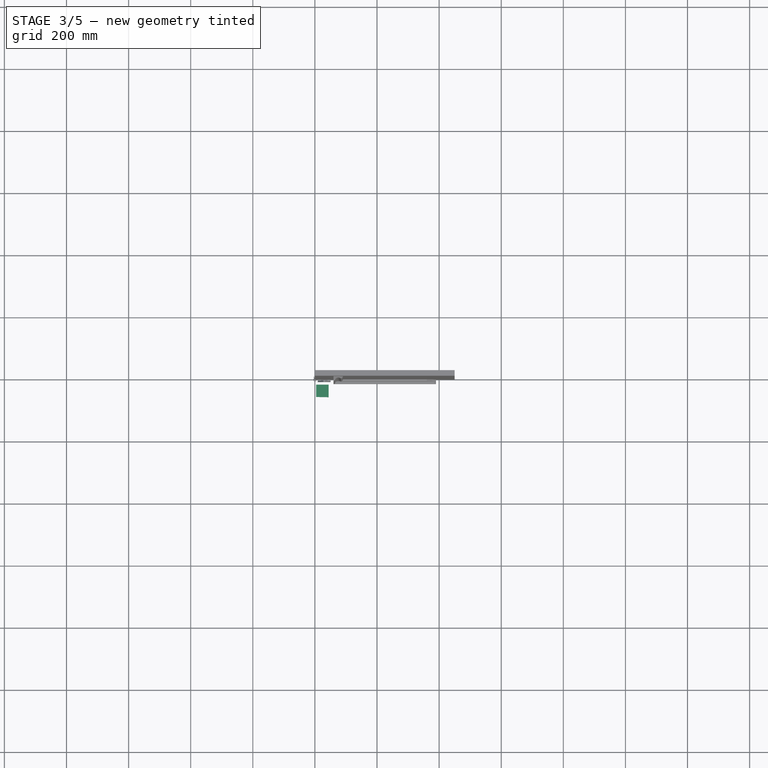
[diagram: stage 3 of 5 — top view after this stage's code; geometry added in this stage tinted green]
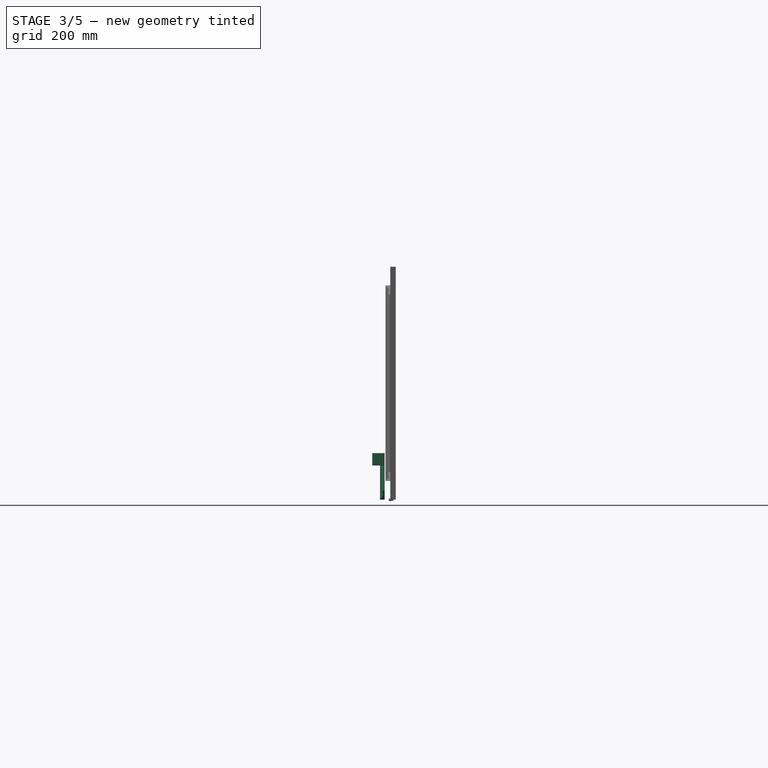
[diagram: stage 3 of 5 — right view after this stage's code; geometry added in this stage tinted green]
FEATURE [App::Part] Part001  label="Part, Decoration, Bottom"
  Group = -> [Body,Body007,Body008,Cut,Cut001]
  Origin = -> Origin008
FEATURE [App::LinkGroup] LinkGroup003  label="LinkGroup, Decoration, Bottom"
  ElementList = -> [Part001]
  LinkMode = 0
  Texture_Repeat_X = 1
  Texture_Repeat_Y = 1
  Texture_Rotation = 0
  Texture_URL = https://upload.wikimedia.org/wikipedia/commons/d/d1/Wood_001_red_light.jpg
FEATURE [App::Link] Link001  label="Link, Decoration, Top"
  LinkPlacement = pos=(784,0,150) rot=(0,1,0;3.14159rad)
  LinkedObject = -> LinkGroup003
  Placement = pos=(784,0,150) rot=(0,1,0;3.14159rad)
  expr: .Placement.Base.x = 2 * <<settings>>.bsink + <<settings>>.dwidth - 2 * <<settings>>.dthick
  expr: .Placement.Base.z = <<settings>>.dheight
FEATURE [Sketcher::SketchObject] Sketch009  label="Pattern, Decoration, Left"
  ArcFitTolerance = 0
  AttachmentOffset = pos=(4,-18,0) rot=(0,0,1;0rad)
  AttachmentSupport = -> [XY_Plane012]
  ExternalTypes = [0]
  FullyConstrained = true
  MakeInternals = false
  MapMode = 5
  Placement = pos=(4,-18,0) rot=(0,0,1;0rad)
  _ExternalGeoVersion = 0
  expr: .AttachmentOffset.Base.x = <<settings>>.bsink
  expr: .AttachmentOffset.Base.y = -<<settings>>.fthick
  sketch-geometry (5):
    g0: LineSegment StartX=30 StartY=-1.7e-15 StartZ=0 EndX=0 EndY=-1.7e-15 EndZ=0
    g1: LineSegment StartX=-1.1e-15 StartY=-15 StartZ=0 EndX=-1.1e-15 EndY=-1.8e-15 EndZ=0
    g2: ArcOfCircle CenterX=0 CenterY=-9 CenterZ=0 NormalX=0 NormalY=0 NormalZ=1 AngleXU=0 Radius=6 StartAngle=4.71239 EndAngle=6.28319
    g3: ArcOfCircle CenterX=15.4828 CenterY=-16.3537 CenterZ=0 NormalX=0 NormalY=0 NormalZ=1 AngleXU=0 Radius=12 StartAngle=0.893826 EndAngle=2.48198
    g4: ArcOfCircle CenterX=23 CenterY=0 CenterZ=0 NormalX=0 NormalY=0 NormalZ=1 AngleXU=0 Radius=7 StartAngle=4.71239 EndAngle=6.28319
  constraints (17):
    c: Vertical(g1)
    c: Coincident(g0,g1)
    c: Horizontal(g0)
    c: Coincident(g0,g-1)
    c: DistanceY(g1,g1) = 15
    c: DistanceX(g0,g0) = 30
    c: Coincident(g2,g1)
    c: Coincident(g3,g2)
    c: Coincident(g4,g3)
    c: Coincident(g4,g0)
    c: PointOnObject(g4,g0)
    c: PointOnObject(g2,g1)
    c: Radius(g2) = 6
    c: Radius(g3) = 12
    c: Radius(g4) = 7
    c: Horizontal(g2,g2)
    c: Vertical(g3,g4)
FEATURE [PartDesign::Pad] Pad009  label="Decoration, Left"
  Direction = (0,0,1)
  Length = 150
  Length2 = 10
  Profile = -> Sketch009
  ReferenceAxis = -> Sketch009 [N_Axis]
  SideType = 0
  Suppressed = false
  Type = 0
  Type2 = 0
  expr: Length = <<settings>>.dheight
FEATURE [PartDesign::Body] Body009  label="Body, Decoration, Left"
  AllowCompound = true
  Group = -> [Sketch009,Pad009]
  Origin = -> Origin013
  Tip = -> Pad009
FEATURE [Sketcher::SketchObject] Sketch010  label="Pattern, Decoration, Left, Cut, Bottom"
  ArcFitTolerance = 0
  AttachmentOffset = pos=(4,0,18) rot=(0,0,1;0rad)
  AttachmentSupport = -> [XZ_Plane013]
  ExternalTypes = [0]
  FullyConstrained = true
  MakeInternals = false
  MapMode = 5
  Placement = pos=(4,-18,4e-15) rot=(1,0,0;1.5708rad)
  _ExternalGeoVersion = 0
  expr: .AttachmentOffset.Base.x = <<settings>>.bsink
  expr: .AttachmentOffset.Base.z = <<settings>>.fthick
  sketch-geometry (3):
    g0: LineSegment StartX=0 StartY=0 StartZ=0 EndX=40 EndY=40 EndZ=0
    g1: LineSegment StartX=40 StartY=40 StartZ=0 EndX=40 EndY=0 EndZ=0
    g2: LineSegment StartX=40 StartY=0 StartZ=0 EndX=0 EndY=0 EndZ=0
  constraints (8):
    c: Coincident(g-1,g0)
    c: Coincident(g0,g1)
    c: PointOnObject(g1,g-1)
    c: Vertical(g1)
    c: Coincident(g1,g2)
    c: Coincident(g2,g0)
    c: Equal(g1,g2)
    c: DistanceY(g1,g1) = 40
FEATURE [PartDesign::Pad] Pad010  label="Decoration, Left, Cut, Bottom"
  Direction = (0,-1,2e-16)
  Length = 40
  Length2 = 10
  Placement = pos=(0,0,0) rot=(1,0,0;1.5708rad)
  Profile = -> Sketch010
  ReferenceAxis = -> Sketch010 [N_Axis]
  SideType = 0
  Suppressed = false
  Type = 0
  Type2 = 0
FEATURE [PartDesign::Body] Body010  label="Body, Decoration, Left, Cut, Bottom"
  AllowCompound = true
  Group = -> [Sketch010,Pad010]
  Origin = -> Origin014
  Tip = -> Pad010
FEATURE [Sketcher::SketchObject] Sketch011  label="Pattern, Decoration, Left, Cut, Top"
  ArcFitTolerance = 0
  AttachmentOffset = pos=(4,150,18) rot=(0,0,1;0rad)
  AttachmentSupport = -> [XZ_Plane014]
  ExternalTypes = [0]
  FullyConstrained = true
  MakeInternals = false
  MapMode = 5
  Placement = pos=(4,-18,150) rot=(1,0,0;1.5708rad)
  _ExternalGeoVersion = 0
  expr: .AttachmentOffset.Base.x = <<settings>>.bsink
  expr: .AttachmentOffset.Base.y = <<settings>>.dheight
  expr: .AttachmentOffset.Base.z = <<settings>>.fthick
  sketch-geometry (3):
    g0: LineSegment StartX=0 StartY=0 StartZ=0 EndX=40 EndY=-40 EndZ=0
    g1: LineSegment StartX=40 StartY=-40 StartZ=0 EndX=40 EndY=0 EndZ=0
    g2: LineSegment StartX=40 StartY=0 StartZ=0 EndX=0 EndY=0 EndZ=0
  constraints (8):
    c: Coincident(g-1,g0)
    c: Coincident(g0,g1)
    c: PointOnObject(g1,g-1)
    c: Vertical(g1)
    c: Coincident(g1,g2)
    c: Coincident(g2,g0)
    c: Equal(g1,g2)
    c: DistanceY(g1,g1) = 40
FEATURE [PartDesign::Pad] Pad011  label="Decoration, Left, Cut, Top"
  Direction = (0,-1,2e-16)
  Length = 40
  Length2 = 10
  Placement = pos=(0,0,0) rot=(1,0,0;1.5708rad)
  Profile = -> Sketch011
  ReferenceAxis = -> Sketch011 [N_Axis]
  SideType = 0
  Suppressed = false
  Type = 0
  Type2 = 0
FEATURE [PartDesign::Body] Body011  label="Body, Decoration, Left, Cut, Top"
  AllowCompound = true
  Group = -> [Sketch011,Pad011]
  Origin = -> Origin015
  Tip = -> Pad011
FEATURE [Part::Cut] Cut002
  Base = -> Body009
  Tool = -> Body010
FEATURE [App::Part] Part002  label="Part, Decoration, Left"
  Group = -> [Body009,Body010,Body011,Cut002,Cut003]
  Origin = -> Origin012
FEATURE [App::LinkGroup] LinkGroup004  label="LinkGroup, Decoration, Left"
  ElementList = -> [Part002]
  LinkMode = 0
  Texture_Repeat_X = 1
  Texture_Repeat_Y = 1
  Texture_Rotation = 0
  Texture_URL = https://upload.wikimedia.org/wikipedia/commons/d/d1/Wood_001_red_light.jpg
FEATURE [App::Link] Link002  label="Link, Decoration, Right"
  LinkPlacement = pos=(784,0,150) rot=(0,1,0;3.14159rad)
  LinkedObject = -> LinkGroup004
  Placement = pos=(784,0,150) rot=(0,1,0;3.14159rad)
  expr: .Placement.Base.x = 2 * <<settings>>.bsink + <<settings>>.dwidth - 2 * <<settings>>.dthick
  expr: .Placement.Base.z = <<settings>>.dheight
FEATURE [App::LinkGroup] LinkGroup005  label="LinkGroup, Drawer"
  ElementList = -> [LinkGroup001,Part,LinkGroup002,Link,LinkGroup003,Link001,LinkGroup004,Link002]
  LinkMode = 0
  Placement = pos=(59,0,20) rot=(0,0,1;0rad)
FEATURE [App::Link] Link003  label="Link, Drawer"
  LinkPlacement = pos=(59,0,282) rot=(0,0,1;0rad)
  LinkedObject = -> LinkGroup005
  Placement = pos=(59,0,282) rot=(0,0,1;0rad)
FEATURE [App::Link] Link004  label="Link, Segment 1"
  LinkPlacement = pos=(900,0,0) rot=(0,0,1;0rad)
  LinkedObject = -> LinkGroup006
  Placement = pos=(900,0,0) rot=(0,0,1;0rad)
FEATURE [App::Link] Link005  label="Link, Segment 2"
  LinkPlacement = pos=(1800,0,0) rot=(0,0,1;0rad)
  LinkedObject = -> Link004
  Placement = pos=(1800,0,0) rot=(0,0,1;0rad)
FEATURE [Spreadsheet::Sheet] Spreadsheet001  label="settings001"
  cells = A1='Settings (set here):; A2='Front width; B2(frfwidth)==450 mm; A3='Front height; B3(frfheight)==750 mm; A4='Front thickness; B4(frfthick)==18 mm; A5='Decoration offset; B5(frdoffset)==60 mm
FEATURE [Part::Box] Box011  label="Front001"
  AttacherType = Attacher::AttachEngine3D
  Height = 750
  Length = 450
  Texture_Repeat_X = 1
  Texture_Repeat_Y = 1
  Texture_Rotation = 0
  Texture_URL = https://upload.wikimedia.org/wikipedia/commons/d/d1/Wood_001_red_light.jpg
  Width = 18
  expr: Height = Spreadsheet001.frfheight
  expr: Length = Spreadsheet001.frfwidth
  expr: Width = Spreadsheet001.frfthick
FEATURE [Part::Cone] Cone001  label="Handle, Pin, left 003"
  Angle = 360
  AttacherType = Attacher::AttachEngine3D
  Height = 10
  Placement = pos=(0,0,0) rot=(-1,0,0;1.5708rad)
  Radius1 = 2
  Radius2 = 4
FEATURE [Part::Sphere] Sphere001  label="Handle, Pin, left 004"
  Angle1 = -90
  Angle2 = 90
  Angle3 = 360
  AttacherType = Attacher::AttachEngine3D
  Radius = 5
FEATURE [App::LinkGroup] LinkGroup007  label="Handle, Pin, Left001"
  ElementList = -> [Cone001,Sphere001]
  LinkMode = 0
  Placement = pos=(30,-10,375) rot=(0,0,1;0rad)
  Texture_Repeat_X = 1
  Texture_Repeat_Y = 1
  Texture_Rotation = 0
  Texture_URL = https://upload.wikimedia.org/wikipedia/commons/1/10/Metal_002_black_light.jpg
  expr: .Placement.Base.x = Spreadsheet001.frdoffset / 2
  expr: .Placement.Base.y = -Spreadsheet001.frfthick + 8 mm
  expr: .Placement.Base.z = Spreadsheet001.frfheight / 2
FEATURE [Sketcher::SketchObject] Sketch012  label="Pattern, Decoration, Bottom001"
  ArcFitTolerance = 0
  AttachmentOffset = pos=(0,60,60) rot=(0,0,1;0rad)
  AttachmentSupport = -> [YZ_Plane016]
  ExternalTypes = [0]
  FullyConstrained = true
  MakeInternals = false
  MapMode = 5
  Placement = pos=(60,0,60) rot=(0.57735,0.57735,0.57735;2.0944rad)
  _ExternalGeoVersion = 0
  expr: .AttachmentOffset.Base.y = Spreadsheet001.frdoffset
  expr: .AttachmentOffset.Base.z = Spreadsheet001.frdoffset
  sketch-geometry (5):
    g0: LineSegment StartX=4e-16 StartY=30 StartZ=0 EndX=4e-16 EndY=0 EndZ=0
    g1: LineSegment StartX=4e-16 StartY=0 StartZ=0 EndX=-15 EndY=0 EndZ=0
    g2: ArcOfCircle CenterX=0 CenterY=23 CenterZ=0 NormalX=0 NormalY=0 NormalZ=1 AngleXU=0 Radius=7 StartAngle=1.5708 EndAngle=3.14159
    g3: ArcOfCircle CenterX=-16.3537 CenterY=15.4828 CenterZ=0 NormalX=0 NormalY=0 NormalZ=1 AngleXU=0 Radius=12 StartAngle=5.372 EndAngle=6.96016
    g4: ArcOfCircle CenterX=-9 CenterY=0 CenterZ=0 NormalX=0 NormalY=0 NormalZ=1 AngleXU=0 Radius=6 StartAngle=1.5708 EndAngle=3.14159
  constraints (17):
    c: Vertical(g0)
    c: Coincident(g1,g0)
    c: Horizontal(g1)
    c: Coincident(g2,g0)
    c: Coincident(g3,g2)
    c: Coincident(g4,g3)
    c: Coincident(g4,g1)
    c: DistanceY(g0,g0) = 30
    c: DistanceX(g1,g1) = 15
    c: Coincident(g0,g-1)
    c: PointOnObject(g2,g0)
    c: PointOnObject(g4,g1)
    c: Radius(g2) = 7
    c: Radius(g3) = 12
    c: Radius(g4) = 6
    c: Vertical(g3,g4)
    c: Horizontal(g2,g2)
FEATURE [PartDesign::Pad] Pad012  label="Decoration, Bottom001"
  Direction = (1,0,0)
  Length = 330
  Length2 = 10
  Placement = pos=(0,0,0) rot=(0.57735,0.57735,0.57735;2.0944rad)
  Profile = -> Sketch012
  ReferenceAxis = -> Sketch012 [N_Axis]
  SideType = 0
  Suppressed = false
  Type = 0
  Type2 = 0
  expr: Length = Spreadsheet001.frfwidth - 2 * Spreadsheet001.frdoffset
FEATURE [PartDesign::Body] Body013  label="Body, Decoration, Bottom, Cut, Left001"
  AllowCompound = true
  Group = -> [Sketch013,Pad013]
  Origin = -> Origin018
  Tip = -> Pad013
FEATURE [Sketcher::SketchObject] Sketch014  label="Pattern, Decoration, Bottom, Cut, Right001"
  ArcFitTolerance = 0
  AttachmentOffset = pos=(390,60,0) rot=(0,0,1;0rad)
  AttachmentSupport = -> [XZ_Plane018]
  ExternalTypes = [0]
  FullyConstrained = true
  MakeInternals = false
  MapMode = 5
  Placement = pos=(390,1.33e-14,60) rot=(1,0,0;1.5708rad)
  _ExternalGeoVersion = 0
  expr: .AttachmentOffset.Base.x = Spreadsheet001.frfwidth - Spreadsheet001.frdoffset
  expr: .AttachmentOffset.Base.y = Spreadsheet001.frdoffset
  sketch-geometry (3):
    g0: LineSegment StartX=-40 StartY=40 StartZ=0 EndX=0 EndY=0 EndZ=0
    g1: LineSegment StartX=0 StartY=0 StartZ=0 EndX=0 EndY=40 EndZ=0
    g2: LineSegment StartX=0 StartY=40 StartZ=0 EndX=-40 EndY=40 EndZ=0
  constraints (8):
    c: Coincident(g0,g-1)
    c: Coincident(g0,g1)
    c: PointOnObject(g1,g-2)
    c: Coincident(g1,g2)
    c: Coincident(g2,g0)
    c: Horizontal(g2)
    c: Equal(g2,g1)
    c: DistanceY(g1,g1) = 40
FEATURE [PartDesign::Pad] Pad014  label="Decoration, Bottom, Cut, Right001"
  Direction = (0,-1,2e-16)
  Length = 40
  Length2 = 10
  Placement = pos=(0,0,0) rot=(1,0,0;1.5708rad)
  Profile = -> Sketch014
  ReferenceAxis = -> Sketch014 [N_Axis]
  SideType = 0
  Suppressed = false
  Type = 0
  Type2 = 0
FEATURE [PartDesign::Body] Body014  label="Body, Decoration, Bottom, Cut, Right001"
  AllowCompound = true
  Group = -> [Sketch014,Pad014]
  Origin = -> Origin019
  Tip = -> Pad014
FEATURE [Part::Cut] Cut004
  Base = -> Body012
  Tool = -> Body013
FEATURE [Part::Cut] Cut005  label="Cut, Decoration, Bottom001"
  Base = -> Cut004
  Texture = https://upload.wikimedia.org/wikipedia/commons/d/d1/Wood_001_red_light.jpg
  Tool = -> Body014
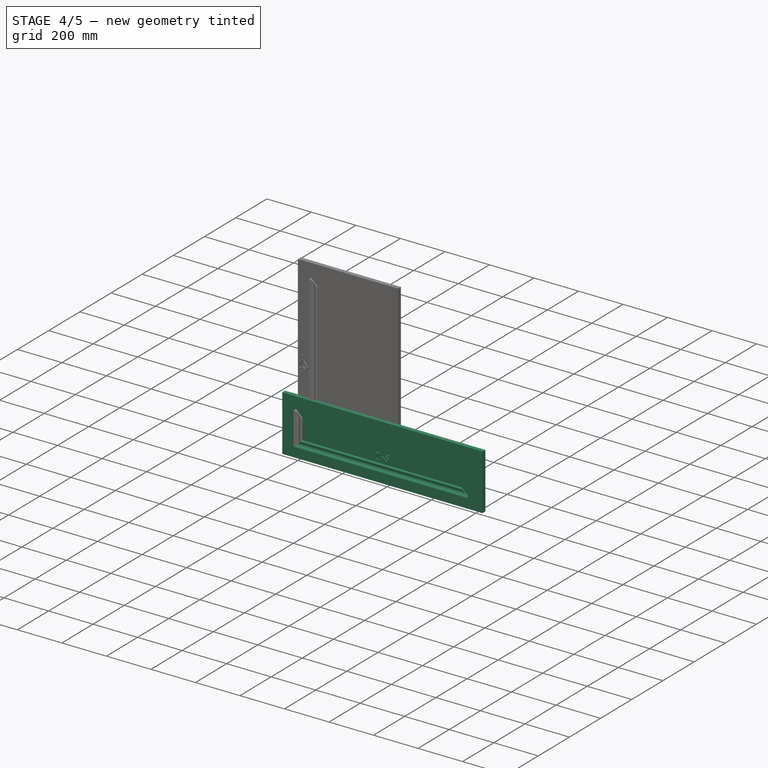
[diagram: stage 4 of 5 — iso view after this stage's code; geometry added in this stage tinted green]
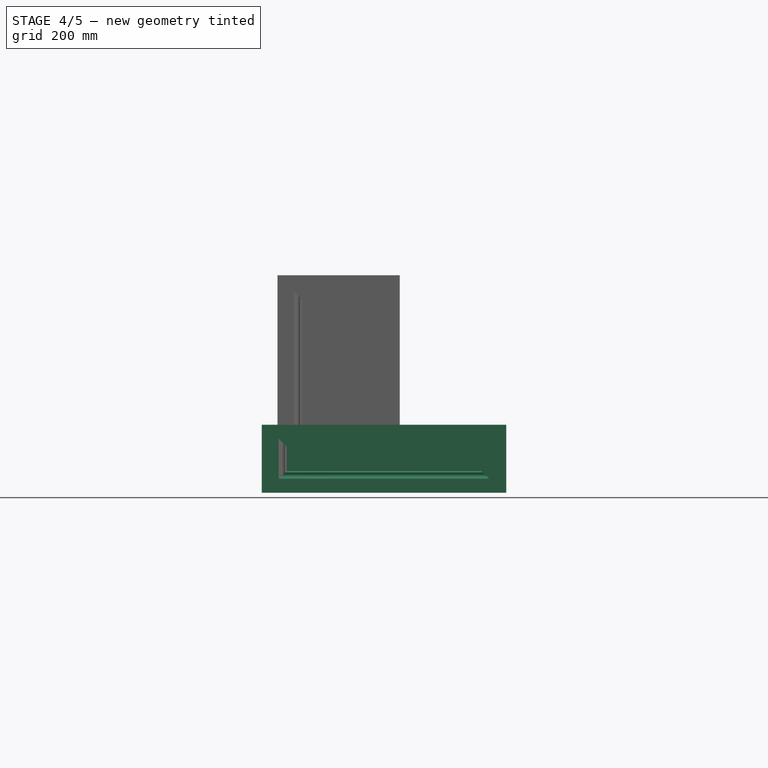
[diagram: stage 4 of 5 — front view after this stage's code; geometry added in this stage tinted green]
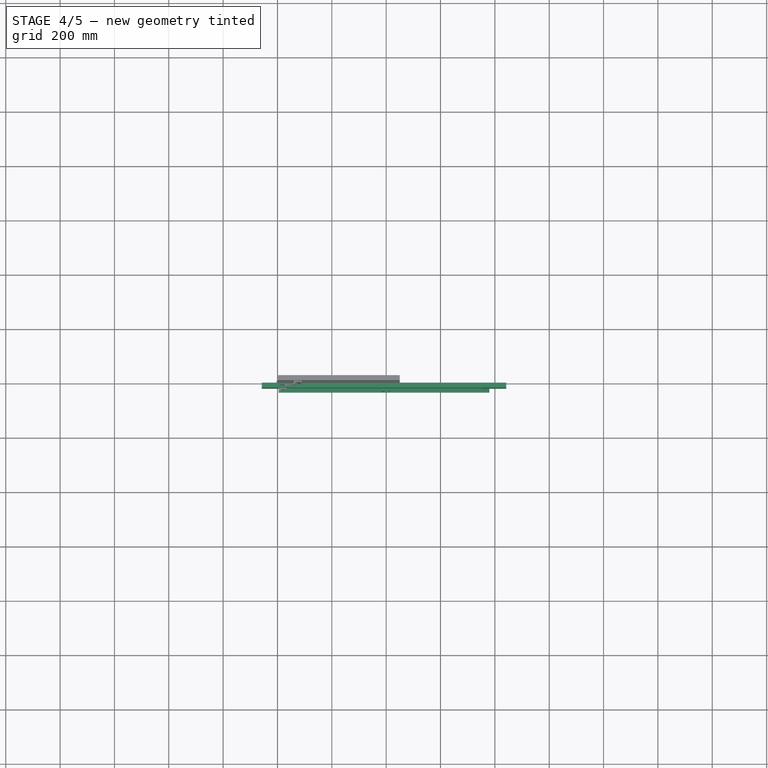
[diagram: stage 4 of 5 — top view after this stage's code; geometry added in this stage tinted green]
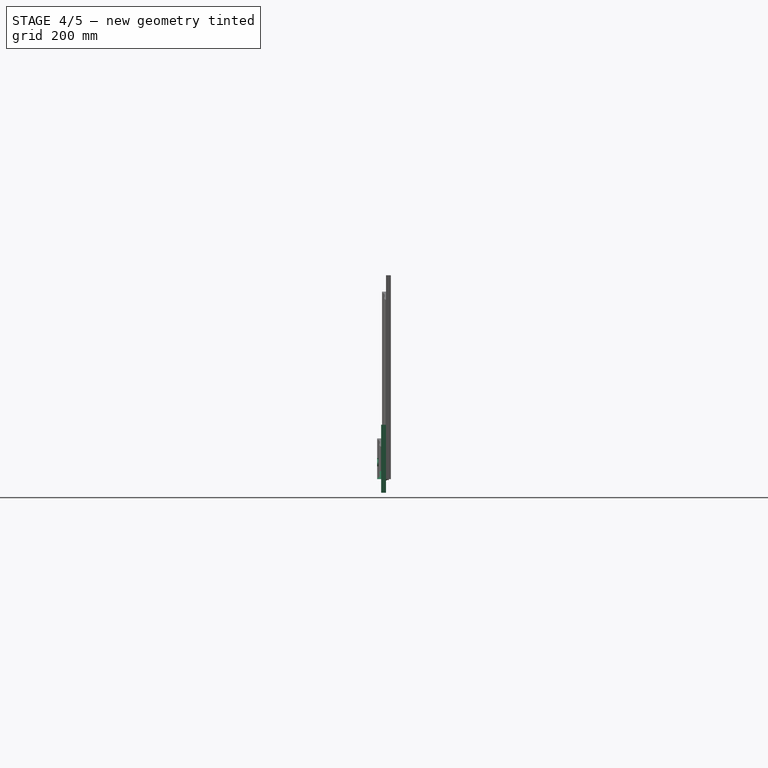
[diagram: stage 4 of 5 — right view after this stage's code; geometry added in this stage tinted green]
FEATURE [Part::Box] Box010  label="Front"
  AttacherType = Attacher::AttachEngine3D
  Height = 250
  Length = 900
  Placement = pos=(-58,-18,-50) rot=(0,0,1;0rad)
  Texture_Repeat_X = 1
  Texture_Repeat_Y = 1
  Texture_Rotation = 0
  Texture_URL = https://upload.wikimedia.org/wikipedia/commons/d/d1/Wood_001_red_light.jpg
  Width = 18
  expr: .Placement.Base.x = <<settings>>.bsink - (<<settings>>.fwidth - <<settings>>.dwidth) / 2 - <<settings>>.dthick
  expr: .Placement.Base.y = -<<settings>>.fthick
  expr: .Placement.Base.z = -(<<settings>>.fheight - <<settings>>.dheight) / 2
  expr: Height = <<settings>>.fheight
  expr: Length = <<settings>>.fwidth
  expr: Width = <<settings>>.fthick
FEATURE [App::LinkGroup] LinkGroup001  label="LinkGroup"
  ElementList = -> [Box006,Box007,Box008,Box009,Box010]
  LinkMode = 0
  Texture_Repeat_X = 1
  Texture_Repeat_Y = 1
  Texture_Rotation = 0
  Texture_URL = https://upload.wikimedia.org/wikipedia/commons/d/d1/Wood_001_red_light.jpg
FEATURE [Sketcher::SketchObject] Sketch006  label="Pattern, Handle"
  ArcFitTolerance = 0
  AttachmentOffset = pos=(400,75,28) rot=(0,0,1;0rad)
  AttachmentSupport = -> [XZ_Plane006]
  ExternalTypes = [0]
  FullyConstrained = true
  MakeInternals = false
  MapMode = 5
  Placement = pos=(400,-28,75) rot=(1,0,0;1.5708rad)
  _ExternalGeoVersion = 0
  expr: .AttachmentOffset.Base.x = <<settings>>.dwidth / 2
  expr: .AttachmentOffset.Base.y = <<settings>>.dheight / 2
  expr: .AttachmentOffset.Base.z = <<settings>>.fthick + 10 mm
  sketch-geometry (20):
    g0: LineSegment StartX=-31.5 StartY=2.62 StartZ=0 EndX=-17.57 EndY=2.62 EndZ=0
    g1: LineSegment StartX=-31.5 StartY=0 StartZ=0 EndX=-17.3512 EndY=0 EndZ=0
    g2: LineSegment StartX=-16.85 StartY=-2.15 StartZ=0 EndX=-28.7075 EndY=-12.82 EndZ=0
    g3: LineSegment StartX=-15.2654 StartY=-4.11 StartZ=0 EndX=-25.6265 EndY=-16.59 EndZ=0
    g4: LineSegment StartX=15.2654 StartY=-4.11 StartZ=0 EndX=25.6265 EndY=-16.59 EndZ=0
    g5: LineSegment StartX=16.85 StartY=-2.15 StartZ=0 EndX=28.7075 EndY=-12.82 EndZ=0
    g6: LineSegment StartX=17.57 StartY=2.62 StartZ=0 EndX=31.5 EndY=2.62 EndZ=0
    g7: LineSegment StartX=17.3512 StartY=0 StartZ=0 EndX=31.5 EndY=0 EndZ=0
    g8: LineSegment StartX=-10.78 StartY=-22.72 StartZ=0 EndX=10.78 EndY=-22.72 EndZ=0
    g9: LineSegment StartX=-31.5 StartY=2.62 StartZ=0 EndX=-31.5 EndY=0 EndZ=0
    g10: LineSegment StartX=31.5 StartY=2.62 StartZ=0 EndX=31.5 EndY=0 EndZ=0
    g11: ArcOfCircle CenterX=-17.98 CenterY=-1.28 CenterZ=0 NormalX=0 NormalY=0 NormalZ=1 AngleXU=0 Radius=3.92149 StartAngle=5.47698 EndAngle=7.74924
    g12: ArcOfCircle CenterX=-17.98 CenterY=-1.28 CenterZ=0 NormalX=0 NormalY=0 NormalZ=1 AngleXU=0 Radius=1.42611 StartAngle=5.62706 EndAngle=7.39735
    g13: ArcOfCircle CenterX=-19.81 CenterY=-17.89 CenterZ=0 NormalX=0 NormalY=0 NormalZ=1 AngleXU=0 Radius=10.2406 StartAngle=2.62366 EndAngle=5.79202
    g14: ArcOfCircle CenterX=19.81 CenterY=-17.89 CenterZ=0 NormalX=0 NormalY=0 NormalZ=1 AngleXU=0 Radius=10.2406 StartAngle=3.63276 EndAngle=6.80112
    g15: ArcOfCircle CenterX=17.98 CenterY=-1.28 CenterZ=0 NormalX=0 NormalY=0 NormalZ=1 AngleXU=0 Radius=3.92149 StartAngle=1.67554 EndAngle=3.9478
    g16: ArcOfCircle CenterX=17.98 CenterY=-1.28 CenterZ=0 NormalX=0 NormalY=0 NormalZ=1 AngleXU=0 Radius=1.42611 StartAngle=2.02742 EndAngle=3.79772
    g17: ArcOfCircle CenterX=0 CenterY=-24.02 CenterZ=0 NormalX=0 NormalY=0 NormalZ=1 AngleXU=0 Radius=14.7824 StartAngle=0.285269 EndAngle=2.85632
    g18: ArcOfCircle CenterX=-19.81 CenterY=-17.89 CenterZ=0 NormalX=0 NormalY=0 NormalZ=1 AngleXU=0 Radius=5.95999 StartAngle=2.9217 EndAngle=5.94631
    g19: ArcOfCircle CenterX=19.81 CenterY=-17.89 CenterZ=0 NormalX=0 NormalY=0 NormalZ=1 AngleXU=0 Radius=5.95999 StartAngle=3.47847 EndAngle=6.50307
  constraints (66):
    c: Horizontal(g0)
    c: Horizontal(g1)
    c: Horizontal(g6)
    c: Horizontal(g7)
    c: Horizontal(g8)
    c: Coincident(g9,g0)
    c: Coincident(g9,g1)
    c: Vertical(g9)
    c: Coincident(g10,g6)
    c: Vertical(g10)
    c: Coincident(g10,g7)
    c: Coincident(g11,g0)
    c: Coincident(g11,g3)
    c: Coincident(g12,g1)
    c: Coincident(g12,g2)
    c: Coincident(g13,g2)
    c: Coincident(g13,g8)
    c: Coincident(g14,g5)
    c: Coincident(g14,g8)
    c: Coincident(g15,g4)
    c: Coincident(g15,g6)
    c: Coincident(g16,g7)
    c: Coincident(g16,g5)
    c: Coincident(g18,g3)
    c: Coincident(g18,g17)
    c: Coincident(g19,g17)
    c: Coincident(g19,g4)
    c: Coincident(g15,g16)
    c: Coincident(g11,g12)
    c: Horizontal(g2,g5)
    c: Horizontal(g3,g4)
    c: Horizontal(g0,g6)
    c: Horizontal(g1,g7)
    c: Horizontal(g5,g2)
    c: Horizontal(g13,g14)
    c: Horizontal(g18,g19)
    c: Horizontal(g17,g17)
    c: Horizontal(g3,g4)
    c: PointOnObject(g17,g-2)
    c: Equal(g11,g15)
    c: Equal(g0,g6)
    c: Equal(g1,g7)
    c: Equal(g3,g4)
    c: Equal(g18,g19)
    c: Equal(g2,g5)
    c: Equal(g13,g14)
    c: Horizontal(g11,g15)
    c: Coincident(g13,g18)
    c: PointOnObject(g7,g-1)
    c: DistanceY(g17,g-1) = 24.02
    c: DistanceY(g14,g-1) = 17.89
    c: DistanceY(g2,g-1) = 12.82
    c: DistanceY(g3,g-1) = 16.59
    c: DistanceY(g8,g-1) = 22.72
    c: DistanceX(g8,g-1) = 10.78
    c: DistanceY(g3,g-1) = 4.11
    c: DistanceY(g2,g-1) = 2.15
    c: DistanceY(g-1,g0) = 2.62
    c: DistanceX(g0,g6) = 63
    c: DistanceX(g13,g14) = 39.62
    c: DistanceX(g17,g17) = 28.37
    c: DistanceY(g17,g-1) = 19.86
    c: DistanceX(g11,g-1) = 17.98
    c: DistanceX(g0,g-1) = 17.57
    c: DistanceX(g2,g-1) = 16.85
    c: DistanceY(g11,g-1) = 1.28
FEATURE [PartDesign::Pad] Pad006  label="Handle"
  Direction = (0,-1,2e-16)
  Length = 5
  Length2 = 10
  Placement = pos=(0,0,0) rot=(1,0,0;1.5708rad)
  Profile = -> Sketch006
  ReferenceAxis = -> Sketch006 [N_Axis]
  SideType = 0
  Suppressed = false
  Type = 0
  Type2 = 0
FEATURE [PartDesign::Body] Body006  label="Body, Handle"
  AllowCompound = true
  Group = -> [Sketch006,Pad006]
  Origin = -> Origin007
  Tip = -> Pad006
FEATURE [App::Part] Part  label="Part, Handle"
  Group = -> [Body006]
  Origin = -> Origin
  Texture_Repeat_X = 1
  Texture_Repeat_Y = 1
  Texture_Rotation = 0
  Texture_URL = https://upload.wikimedia.org/wikipedia/commons/1/10/Metal_002_black_light.jpg
FEATURE [Part::Cone] Cone  label="Handle, Pin, left 1"
  Angle = 360
  AttacherType = Attacher::AttachEngine3D
  Height = 10
  Placement = pos=(-30,-10,1) rot=(-1,0,0;1.5708rad)
  Radius1 = 2
  Radius2 = 4
FEATURE [Part::Sphere] Sphere  label="Handle, Pin, left 2"
  Angle1 = -90
  Angle2 = 90
  Angle3 = 360
  AttacherType = Attacher::AttachEngine3D
  Placement = pos=(-30,-12,1) rot=(0,0,1;0rad)
  Radius = 5
FEATURE [App::LinkGroup] LinkGroup002  label="Handle, Pin, Left"
  ElementList = -> [Cone,Sphere]
  LinkMode = 0
  Placement = pos=(400,-18,75) rot=(0,0,1;0rad)
  Texture_Repeat_X = 1
  Texture_Repeat_Y = 1
  Texture_Rotation = 0
  Texture_URL = https://upload.wikimedia.org/wikipedia/commons/1/10/Metal_002_black_light.jpg
  expr: .Placement.Base.x = <<settings>>.dwidth / 2
  expr: .Placement.Base.y = -<<settings>>.fthick
  expr: .Placement.Base.z = <<settings>>.dheight / 2
FEATURE [App::Link] Link  label="Handle, Pin, Right"
  LinkPlacement = pos=(460,-18,75) rot=(0,0,1;0rad)
  LinkedObject = -> LinkGroup002
  Placement = pos=(460,-18,75) rot=(0,0,1;0rad)
  expr: .Placement.Base.x = 60 mm + <<settings>>.dwidth / 2
  expr: .Placement.Base.y = -<<settings>>.fthick
  expr: .Placement.Base.z = <<settings>>.dheight / 2
FEATURE [Sketcher::SketchObject] Sketch  label="Pattern, Decoration, Bottom"
  ArcFitTolerance = 0
  AttachmentOffset = pos=(-18,0,4) rot=(0,0,1;0rad)
  AttachmentSupport = -> [YZ_Plane008]
  ExternalTypes = [0]
  FullyConstrained = true
  MakeInternals = false
  MapMode = 5
  Placement = pos=(4,-18,0) rot=(0.57735,0.57735,0.57735;2.0944rad)
  _ExternalGeoVersion = 0
  expr: .AttachmentOffset.Base.x = -<<settings>>.fthick
  expr: .AttachmentOffset.Base.z = <<settings>>.bsink
  sketch-geometry (5):
    g0: LineSegment StartX=4e-16 StartY=30 StartZ=0 EndX=4e-16 EndY=0 EndZ=0
    g1: LineSegment StartX=4e-16 StartY=0 StartZ=0 EndX=-15 EndY=0 EndZ=0
    g2: ArcOfCircle CenterX=0 CenterY=23 CenterZ=0 NormalX=0 NormalY=0 NormalZ=1 AngleXU=0 Radius=7 StartAngle=1.5708 EndAngle=3.14159
    g3: ArcOfCircle CenterX=-16.3537 CenterY=15.4828 CenterZ=0 NormalX=0 NormalY=0 NormalZ=1 AngleXU=0 Radius=12 StartAngle=5.372 EndAngle=6.96016
    g4: ArcOfCircle CenterX=-9 CenterY=0 CenterZ=0 NormalX=0 NormalY=0 NormalZ=1 AngleXU=0 Radius=6 StartAngle=1.5708 EndAngle=3.14159
  constraints (17):
    c: Vertical(g0)
    c: Coincident(g1,g0)
    c: Horizontal(g1)
    c: Coincident(g2,g0)
    c: Coincident(g3,g2)
    c: Coincident(g4,g3)
    c: Coincident(g4,g1)
    c: DistanceY(g0,g0) = 30
    c: DistanceX(g1,g1) = 15
    c: Coincident(g0,g-1)
    c: PointOnObject(g2,g0)
    c: PointOnObject(g4,g1)
    c: Radius(g2) = 7
    c: Radius(g3) = 12
    c: Radius(g4) = 6
    c: Vertical(g3,g4)
    c: Horizontal(g2,g2)
FEATURE [PartDesign::Pad] Pad  label="Decoration, Bottom"
  Direction = (1,0,0)
  Length = 776
  Length2 = 10
  Placement = pos=(0,0,0) rot=(0.57735,0.57735,0.57735;2.0944rad)
  Profile = -> Sketch
  ReferenceAxis = -> Sketch [N_Axis]
  SideType = 0
  Suppressed = false
  Type = 0
  Type2 = 0
  expr: Length = <<settings>>.dwidth - 2 * <<settings>>.dthick
FEATURE [PartDesign::Body] Body  label="Body, Decoration, Bottom"
  AllowCompound = true
  Group = -> [Sketch,Pad]
  Origin = -> Origin009
  Tip = -> Pad
FEATURE [Sketcher::SketchObject] Sketch007  label="Pattern, Decoration, Bottom, Cut, Left"
  ArcFitTolerance = 0
  AttachmentOffset = pos=(4,0,18) rot=(0,0,1;0rad)
  AttachmentSupport = -> [XZ_Plane009]
  ExternalTypes = [0]
  FullyConstrained = true
  MakeInternals = false
  MapMode = 5
  Placement = pos=(4,-18,4e-15) rot=(1,0,0;1.5708rad)
  _ExternalGeoVersion = 0
  expr: .AttachmentOffset.Base.x = <<settings>>.bsink
  expr: .AttachmentOffset.Base.z = <<settings>>.fthick
  sketch-geometry (3):
    g0: LineSegment StartX=0 StartY=0 StartZ=0 EndX=40 EndY=40 EndZ=0
    g1: LineSegment StartX=40 StartY=40 StartZ=0 EndX=0 EndY=40 EndZ=0
    g2: LineSegment StartX=0 StartY=40 StartZ=0 EndX=0 EndY=0 EndZ=0
  constraints (8):
    c: Coincident(g0,g1)
    c: Horizontal(g1)
    c: Coincident(g1,g2)
    c: Coincident(g2,g0)
    c: Coincident(g0,g-1)
    c: Vertical(g2)
    c: Equal(g2,g1)
    c: DistanceY(g2,g2) = 40
FEATURE [PartDesign::Pad] Pad007  label="Decoration, Bottom, Cut, Left"
  Direction = (0,-1,2e-16)
  Length = 40
  Length2 = 10
  Placement = pos=(0,0,0) rot=(1,0,0;1.5708rad)
  Profile = -> Sketch007
  ReferenceAxis = -> Sketch007 [N_Axis]
  SideType = 0
  Suppressed = false
  Type = 0
  Type2 = 0
FEATURE [PartDesign::Body] Body007  label="Body, Decoration, Bottom, Cut, Left"
  AllowCompound = true
  Group = -> [Sketch007,Pad007]
  Origin = -> Origin010
  Tip = -> Pad007
FEATURE [Sketcher::SketchObject] Sketch008  label="Pattern, Decoration, Bottom, Cut, Right"
  ArcFitTolerance = 0
  AttachmentOffset = pos=(780,0,18) rot=(0,0,1;0rad)
  AttachmentSupport = -> [XZ_Plane010]
  ExternalTypes = [0]
  FullyConstrained = true
  MakeInternals = false
  MapMode = 5
  Placement = pos=(780,-18,4e-15) rot=(1,0,0;1.5708rad)
  _ExternalGeoVersion = 0
  expr: .AttachmentOffset.Base.x = <<settings>>.bsink + <<settings>>.dwidth - 2 * <<settings>>.dthick
  expr: .AttachmentOffset.Base.z = <<settings>>.fthick
  sketch-geometry (3):
    g0: LineSegment StartX=-40 StartY=40 StartZ=0 EndX=0 EndY=0 EndZ=0
    g1: LineSegment StartX=0 StartY=0 StartZ=0 EndX=0 EndY=40 EndZ=0
    g2: LineSegment StartX=0 StartY=40 StartZ=0 EndX=-40 EndY=40 EndZ=0
  constraints (8):
    c: Coincident(g0,g-1)
    c: Coincident(g0,g1)
    c: PointOnObject(g1,g-2)
    c: Coincident(g1,g2)
    c: Coincident(g2,g0)
    c: Horizontal(g2)
    c: Equal(g2,g1)
    c: DistanceY(g1,g1) = 40
FEATURE [PartDesign::Pad] Pad008  label="Decoration, Bottom, Cut, Right"
  Direction = (0,-1,2e-16)
  Length = 40
  Length2 = 10
  Placement = pos=(0,0,0) rot=(1,0,0;1.5708rad)
  Profile = -> Sketch008
  ReferenceAxis = -> Sketch008 [N_Axis]
  SideType = 0
  Suppressed = false
  Type = 0
  Type2 = 0
FEATURE [PartDesign::Body] Body008  label="Body, Decoration, Bottom, Cut, Right"
  AllowCompound = true
  Group = -> [Sketch008,Pad008]
  Origin = -> Origin011
  Tip = -> Pad008
FEATURE [Part::Cut] Cut
  Base = -> Body
  Tool = -> Body007
FEATURE [Part::Cut] Cut001  label="Cut, Decoration, Bottom"
  Base = -> Cut
  Texture = https://upload.wikimedia.org/wikipedia/commons/d/d1/Wood_001_red_light.jpg
  Tool = -> Body008
FEATURE [Part::Cut] Cut003  label="Cut, Decoration, Left"
  Base = -> Cut002
  Tool = -> Body011
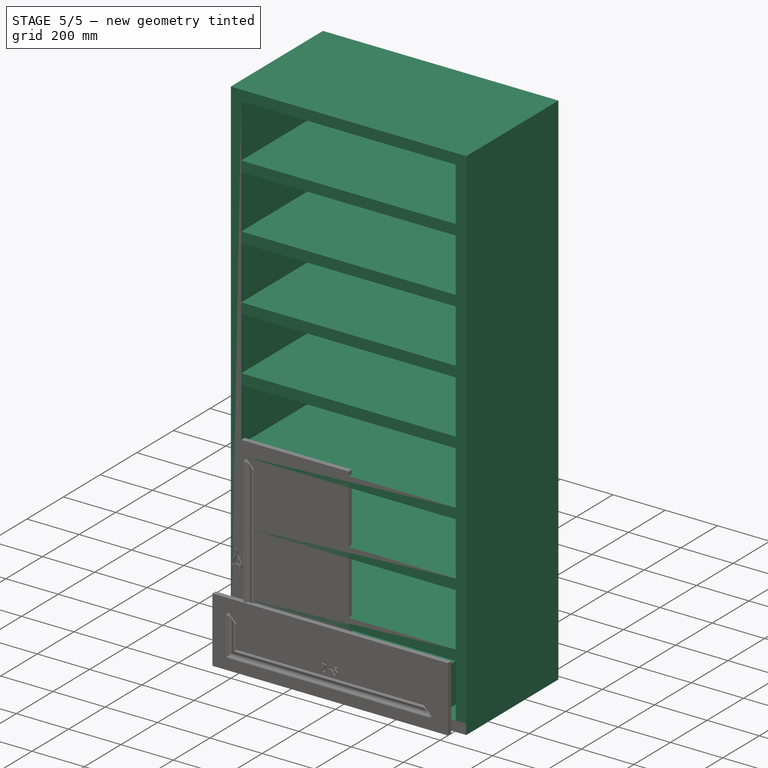
[diagram: stage 5 of 5 — iso view after this stage's code; geometry added in this stage tinted green]
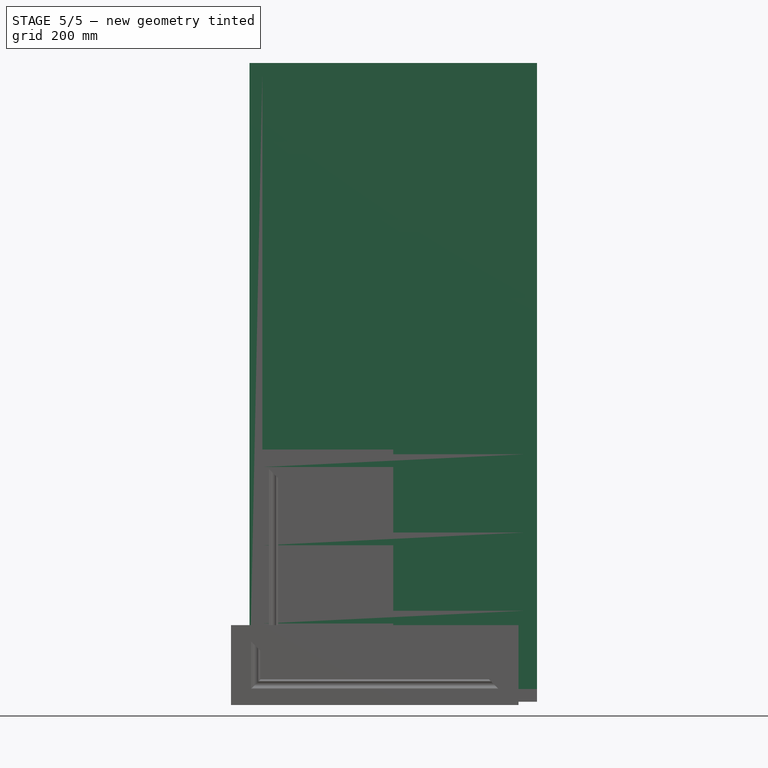
[diagram: stage 5 of 5 — front view after this stage's code; geometry added in this stage tinted green]
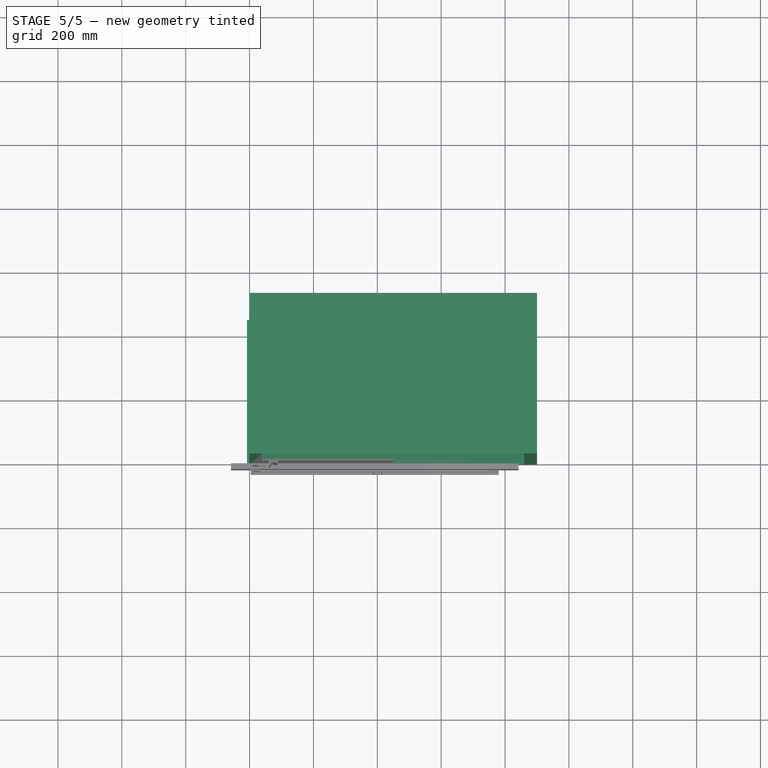
[diagram: stage 5 of 5 — top view after this stage's code; geometry added in this stage tinted green]
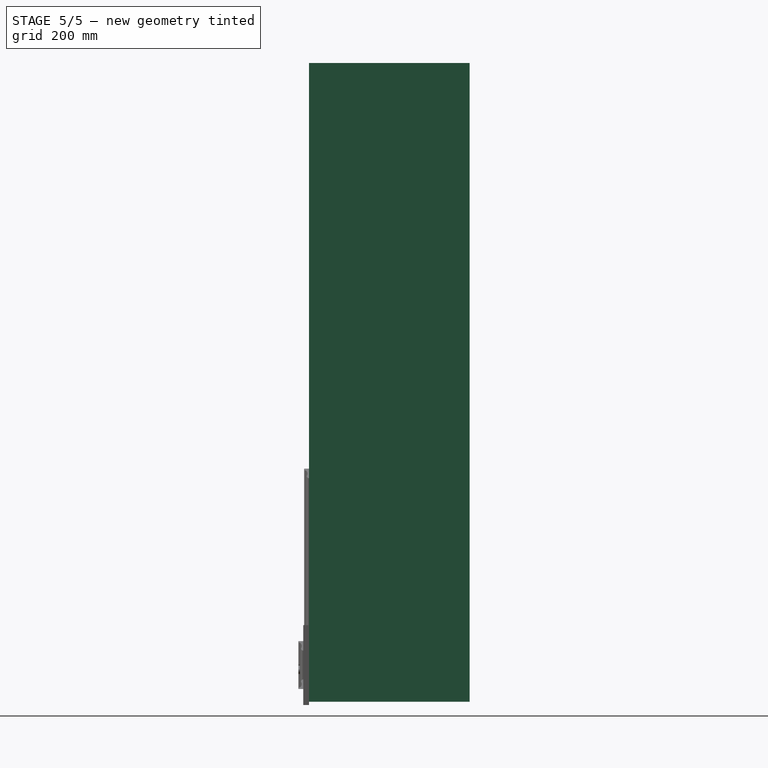
[diagram: stage 5 of 5 — right view after this stage's code; geometry added in this stage tinted green]
FEATURE [Spreadsheet::Sheet] Spreadsheet  label="settings"
  cells = A1='Bookcase settings (set here):; A2='Bookcase width; B2(bwidth)==900 mm; A3='Bookcase height; B3(bheight)==2000 mm; A4='Bookcase depth; B4(bdepth)==500 mm; A5='Wood thickness; B5(wthick)==40 mm; A6='Back thickness; B6(bbthick)==3 mm; A7='Shelfs number; B7(snum)=7; A8='Calculated (not change here):; A9='Shelf interval Z; B9(sintZ)==(bheight - (snum + 2) * wthick) / (snum + 1) + wthick; A11='Drawer settings (set here):; A12='Drawer width; B12(dwidth)==800 mm; A13='Drawer depth; B13(ddepth)==450 mm; A14='Drawer height; B14(dheight)==150 mm; A15='Front width; B15(fwidth)==900 mm; A16='Front height; B16(fheight)==250 mm; A17='Drawer thickness; B17(dthick)==12 mm; A18='Front thickness; B18(fthick)==18 mm; A19='Bottom thickness; B19(bthick)==3 mm; A20='Bottom offset; B20(boffset)==10 mm; A21='Bottom sink; B21(bsink)==4 mm
FEATURE [Part::Box] Box  label="Side left"
  AttacherType = Attacher::AttachEngine3D
  Height = 1920
  Length = 40
  Width = 500
  expr: Height = <<settings>>.bheight - 2 * <<settings>>.wthick
  expr: Length = <<settings>>.wthick
  expr: Width = <<settings>>.bdepth
FEATURE [Part::Box] Box001  label="Side right"
  AttacherType = Attacher::AttachEngine3D
  Height = 1920
  Length = 40
  Placement = pos=(860,0,0) rot=(0,0,1;0rad)
  Width = 500
  expr: .Placement.Base.x = <<settings>>.bwidth - <<settings>>.wthick
  expr: Height = <<settings>>.bheight - 2 * <<settings>>.wthick
  expr: Length = <<settings>>.wthick
  expr: Width = <<settings>>.bdepth
FEATURE [Part::Box] Box002  label="Top"
  AttacherType = Attacher::AttachEngine3D
  Height = 40
  Length = 900
  Placement = pos=(0,0,1920) rot=(0,0,1;0rad)
  Width = 500
  expr: .Placement.Base.z = <<settings>>.bheight - 2 * <<settings>>.wthick
  expr: Height = <<settings>>.wthick
  expr: Length = <<settings>>.bwidth
  expr: Width = <<settings>>.bdepth
FEATURE [Part::Box] Box003  label="Bottom"
  AttacherType = Attacher::AttachEngine3D
  Height = 40
  Length = 900
  Placement = pos=(0,0,-40) rot=(0,0,1;0rad)
  Width = 500
  expr: .Placement.Base.z = -<<settings>>.wthick
  expr: Height = <<settings>>.wthick
  expr: Length = <<settings>>.bwidth
  expr: Width = <<settings>>.bdepth
FEATURE [Part::Box] Box004  label="Back"
  AttacherType = Attacher::AttachEngine3D
  Height = 2000
  Length = 900
  Placement = pos=(0,500,-40) rot=(0,0,1;0rad)
  Width = 3
  expr: .Placement.Base.y = <<settings>>.bdepth
  expr: .Placement.Base.z = -<<settings>>.wthick
  expr: Height = <<settings>>.bheight
  expr: Length = <<settings>>.bwidth
  expr: Width = Spreadsheet.bbthick
FEATURE [Part::Box] Box005  label="Shelf"
  AttacherType = Attacher::AttachEngine3D
  Height = 40
  Length = 820
  Placement = pos=(40,0,205) rot=(0,0,1;0rad)
  Width = 500
  expr: .Placement.Base.x = <<settings>>.wthick
  expr: .Placement.Base.z = <<settings>>.sintZ - <<settings>>.wthick
  expr: Height = <<settings>>.wthick
  expr: Length = <<settings>>.bwidth - 2 * <<settings>>.wthick
  expr: Width = <<settings>>.bdepth
FEATURE [Part::FeaturePython] Array  label="Array, Shelfs"  # Draft array (typed FeaturePython)
  Angle = 360
  ArrayType = 0
  Axis = (0,0,1)
  Base = -> Box005
  Center = (0,0,0)
  Count = 7
  Fuse = false
  IntervalAxis = (0,0,0)
  IntervalX = (1,0,0)
  IntervalY = (0,1,0)
  IntervalZ = (0,0,245)
  NumberCircles = 3
  NumberPolar = 5
  NumberX = 1
  NumberY = 1
  NumberZ = 7
  PlacementList = 7 placements: arithmetic series from (40,0,205) step (0,0,245) to (40,0,1675)
  RadialDistance = 50
  Symmetry = 1
  TangentialDistance = 25
  expr: .IntervalZ.z = <<settings>>.sintZ
  expr: NumberZ = <<settings>>.snum
FEATURE [App::LinkGroup] LinkGroup  label="LinkGroup, Bookcase"
  ElementList = -> [Box,Box001,Box002,Box003,Box004,Box005,Array]
  LinkMode = 0
  Texture_Repeat_X = 1
  Texture_Repeat_Y = 1
  Texture_Rotation = 0
  Texture_URL = https://upload.wikimedia.org/wikipedia/commons/d/d1/Wood_001_red_light.jpg
FEATURE [Part::Box] Box006  label="Bottom001"
  AttacherType = Attacher::AttachEngine3D
  Height = 3
  Length = 784
  Placement = pos=(0,-4,10) rot=(0,0,1;0rad)
  Texture_Repeat_X = 1
  Texture_Repeat_Y = 1
  Texture_Rotation = 0
  Texture_URL = https://upload.wikimedia.org/wikipedia/commons/9/99/Wood_016_chipboard_plain_white.jpg
  Width = 446
  expr: .Placement.Base.y = -<<settings>>.bsink
  expr: .Placement.Base.z = <<settings>>.boffset
  expr: Height = Spreadsheet.bbthick
  expr: Length = <<settings>>.dwidth - 2 * <<settings>>.dthick + 2 * <<settings>>.bsink
  expr: Width = <<settings>>.ddepth - <<settings>>.dthick + 2 * <<settings>>.bsink
FEATURE [Part::Box] Box007  label="Left"
  AttacherType = Attacher::AttachEngine3D
  Height = 150
  Length = 12
  Placement = pos=(-8,0,0) rot=(0,0,1;0rad)
  Texture_Repeat_X = 1
  Texture_Repeat_Y = 1
  Texture_Rotation = 0
  Texture_URL = https://upload.wikimedia.org/wikipedia/commons/9/99/Wood_016_chipboard_plain_white.jpg
  Width = 450
  expr: .Placement.Base.x = -<<settings>>.dthick + <<settings>>.bsink
  expr: Height = <<settings>>.dheight
  expr: Length = <<settings>>.dthick
  expr: Width = <<settings>>.ddepth
FEATURE [Part::Box] Box008  label="Right"
  AttacherType = Attacher::AttachEngine3D
  Height = 150
  Length = 12
  Placement = pos=(780,0,0) rot=(0,0,1;0rad)
  Texture_Repeat_X = 1
  Texture_Repeat_Y = 1
  Texture_Rotation = 0
  Texture_URL = https://upload.wikimedia.org/wikipedia/commons/9/99/Wood_016_chipboard_plain_white.jpg
  Width = 450
  expr: .Placement.Base.x = <<settings>>.dwidth - 2 * <<settings>>.dthick + <<settings>>.bsink
  expr: Height = <<settings>>.dheight
  expr: Length = <<settings>>.dthick
  expr: Width = <<settings>>.ddepth
FEATURE [Part::Box] Box009  label="Back001"
  AttacherType = Attacher::AttachEngine3D
  Height = 150
  Length = 776
  Placement = pos=(4,438,0) rot=(0,0,1;0rad)
  Texture_Repeat_X = 1
  Texture_Repeat_Y = 1
  Texture_Rotation = 0
  Texture_URL = https://upload.wikimedia.org/wikipedia/commons/9/99/Wood_016_chipboard_plain_white.jpg
  Width = 12
  expr: .Placement.Base.x = <<settings>>.bsink
  expr: .Placement.Base.y = <<settings>>.ddepth - <<settings>>.dthick
  expr: Height = <<settings>>.dheight
  expr: Length = <<settings>>.dwidth - 2 * <<settings>>.dthick
  expr: Width = <<settings>>.dthick
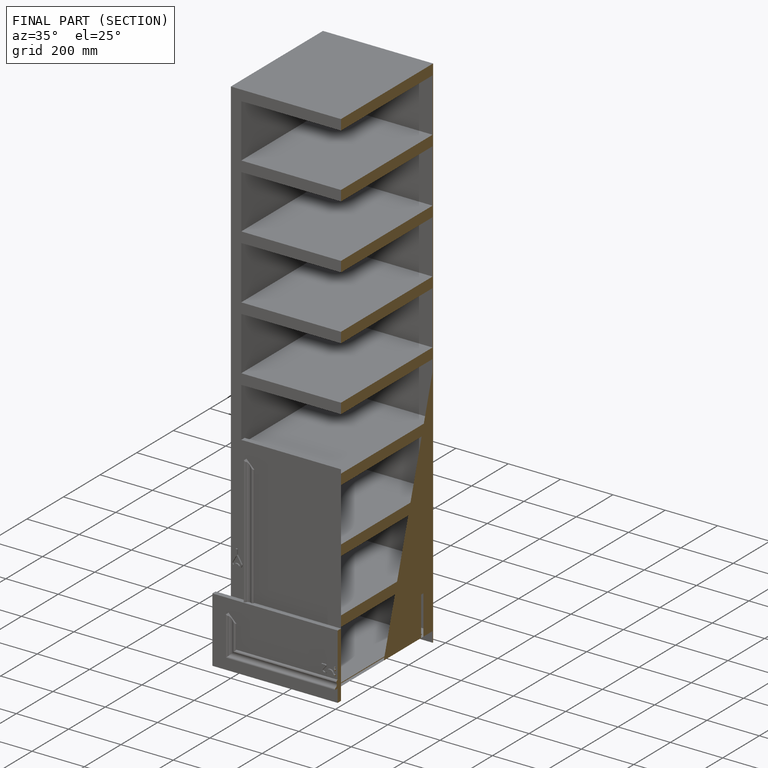
[diagram: finished part — half-section view (interior)]
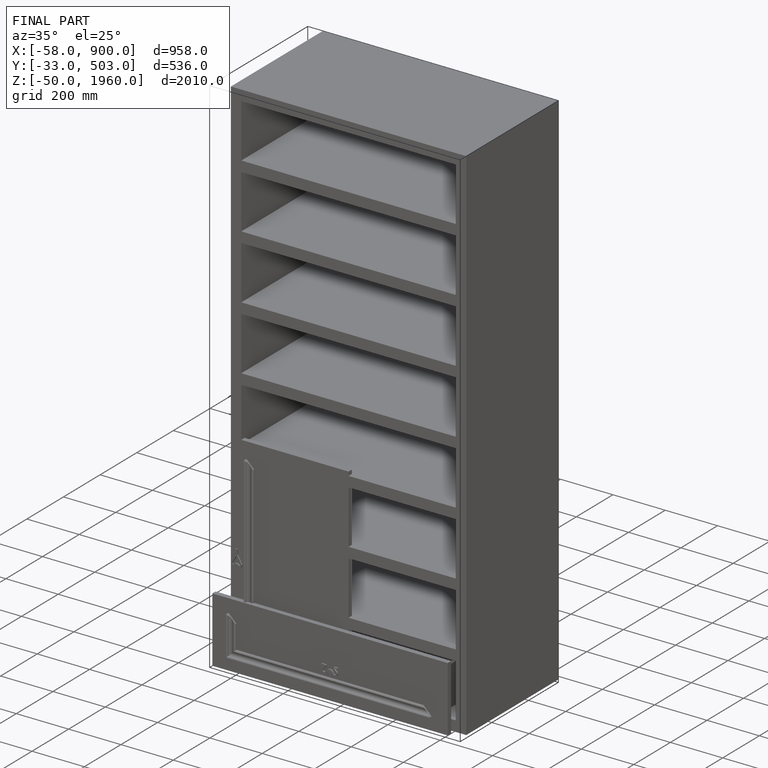
[diagram: finished part — iso view with bounding-box wireframe]
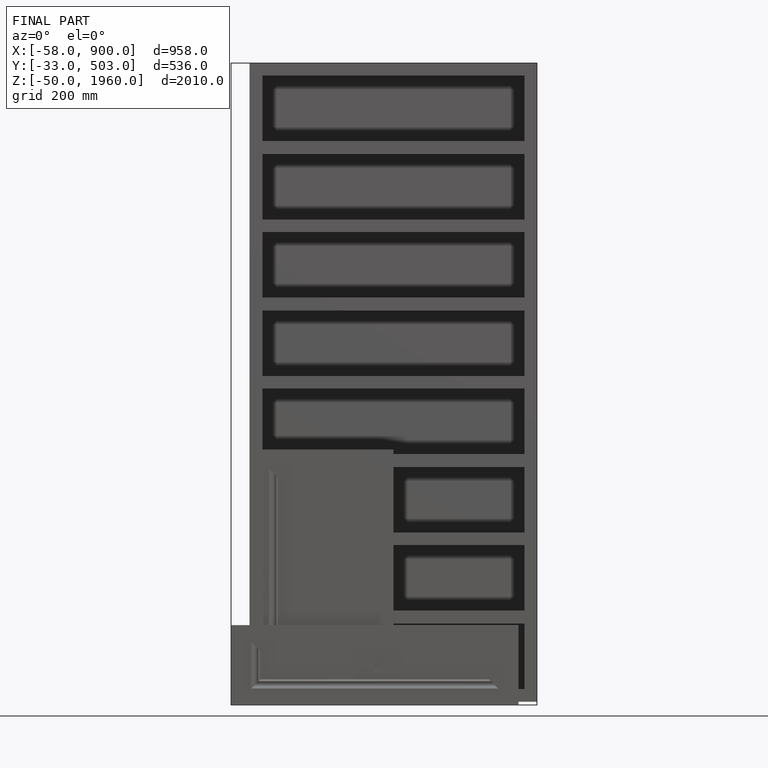
[diagram: finished part — front view with bounding-box wireframe]
